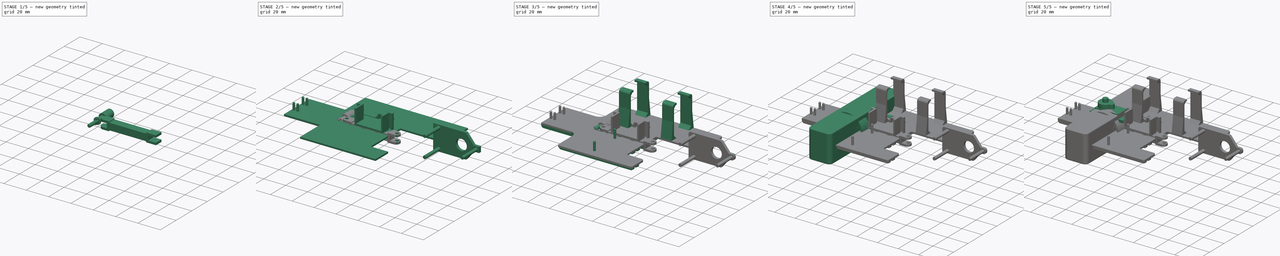
[diagram: build sequence overview — one tinted view per stage of 5, left to right]
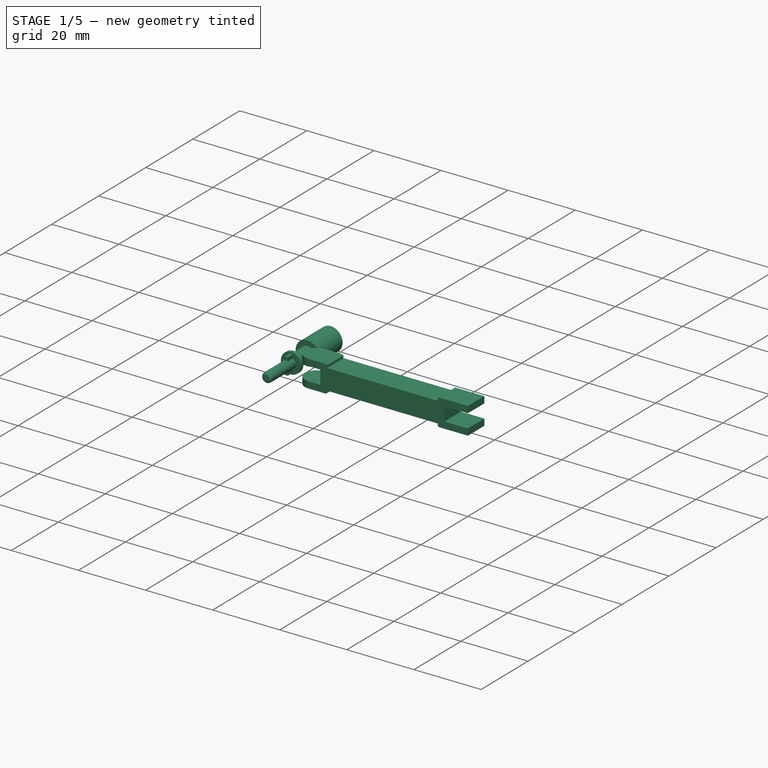
[diagram: stage 1 of 5 — iso view after this stage's code; geometry added in this stage tinted green]
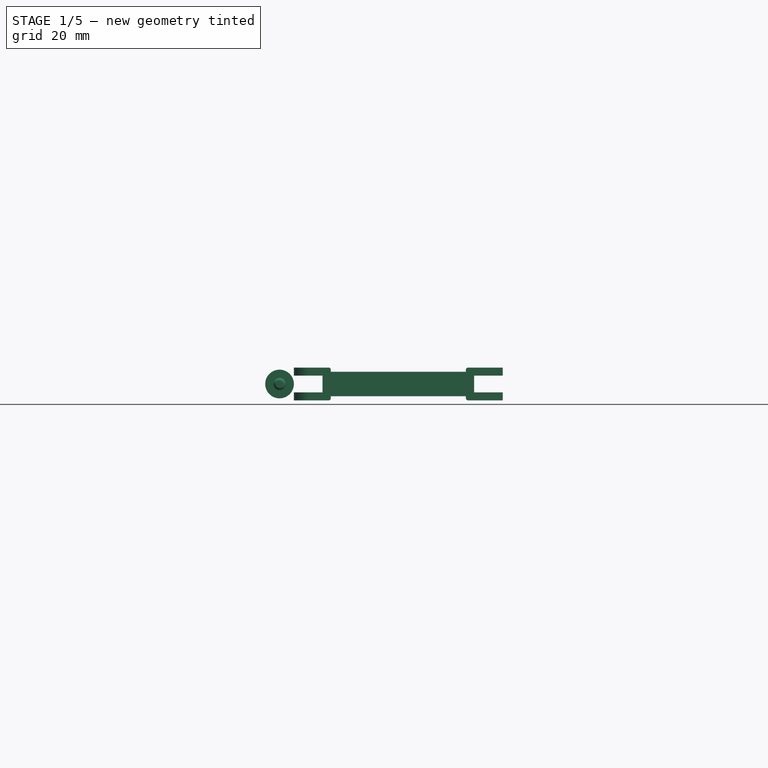
[diagram: stage 1 of 5 — front view after this stage's code; geometry added in this stage tinted green]
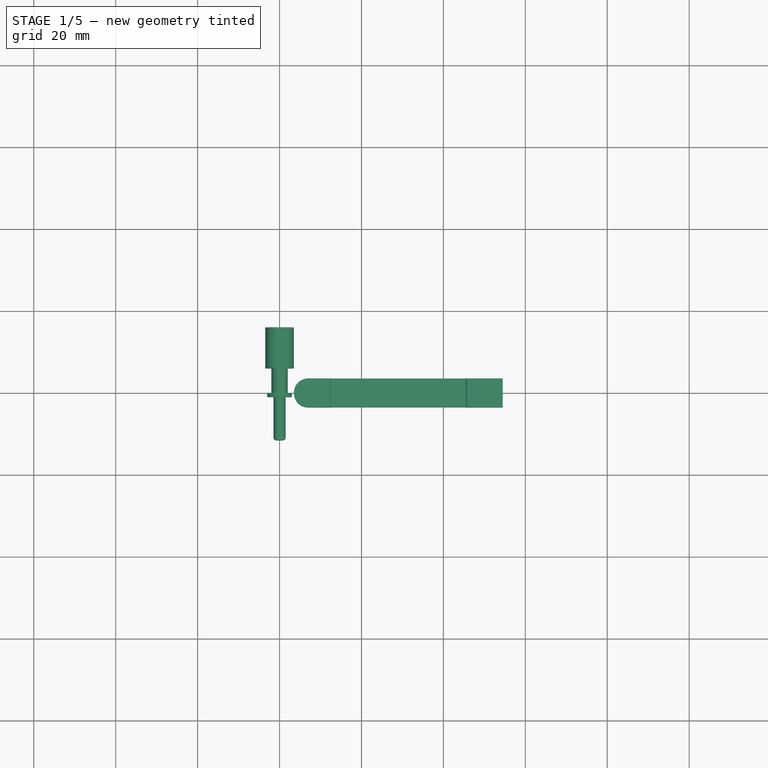
[diagram: stage 1 of 5 — top view after this stage's code; geometry added in this stage tinted green]
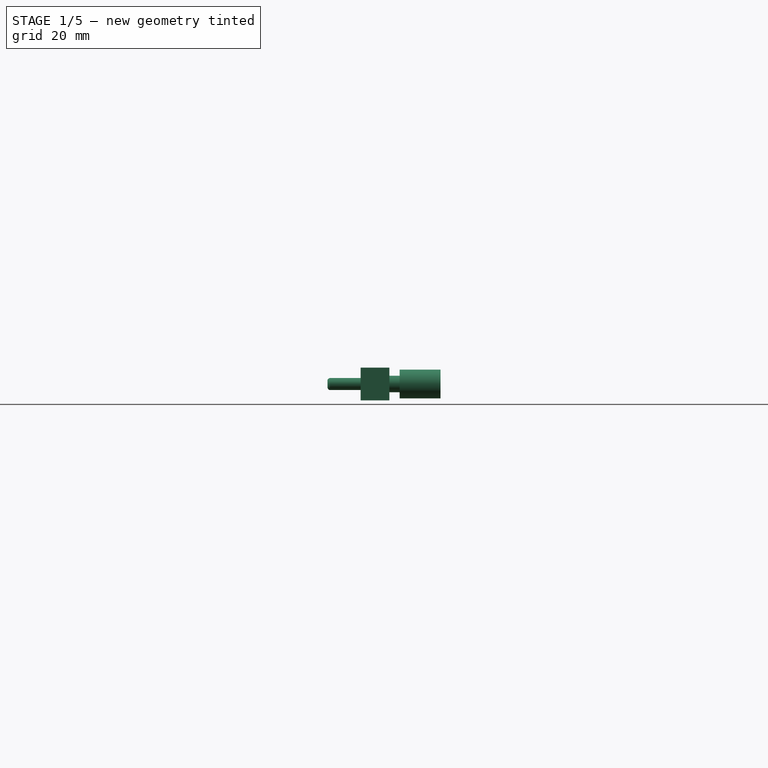
[diagram: stage 1 of 5 — right view after this stage's code; geometry added in this stage tinted green]
FCSTD DOCUMENT  (FreeCAD 0.21R33668 +26 (Git))
Label: rc-car-frame
License: All rights reserved
LicenseURL: http://en.wikipedia.org/wiki/All_rights_reserved
objects: Sketcher::SketchObject×78, PartDesign::Pad×59, PartDesign::Fillet×39, PartDesign::Pocket×17, PartDesign::Body×14, PartDesign::Thickness×2, PartDesign::Revolution×2, PartDesign::Chamfer×2
note: 334 computed .brp shape members not serialized (recipe doc carries the construction recipe); baked Part::Feature solids carry a one-line shape summary decoded from their .brp

FEATURE [Sketcher::SketchObject] Sketch013
  FullyConstrained = true
  MapMode = 5
  Placement = pos=(0,0,0) rot=(1,0,0;1.5708rad)
  Support = -> [XZ_Plane003]
  sketch-geometry (20):
    g0: LineSegment StartX=3.5 StartY=4 StartZ=0 EndX=3.5 EndY=2.05 EndZ=0
    g1: LineSegment StartX=3.5 StartY=2.05 StartZ=0 EndX=10.5 EndY=2.05 EndZ=0
    g2: LineSegment StartX=10.5 StartY=2.05 StartZ=0 EndX=10.5 EndY=-2.05 EndZ=0
    g3: LineSegment StartX=10.5 StartY=-2.05 StartZ=0 EndX=3.5 EndY=-2.05 EndZ=0
    g4: LineSegment StartX=3.5 StartY=-2.05 StartZ=0 EndX=3.5 EndY=-4 EndZ=0
    g5: LineSegment StartX=3.5 StartY=-4 StartZ=0 EndX=12.5 EndY=-4 EndZ=0
    g6: LineSegment StartX=12.5 StartY=-4 StartZ=0 EndX=12.5 EndY=-3 EndZ=0
    g7: LineSegment StartX=12.5 StartY=-3 StartZ=0 EndX=45.5 EndY=-3 EndZ=0
    g8: LineSegment StartX=45.5 StartY=-3 StartZ=0 EndX=45.5 EndY=-4 EndZ=0
    g9: LineSegment StartX=45.5 StartY=-4 StartZ=0 EndX=54.5 EndY=-4 EndZ=0
    g10: LineSegment StartX=54.5 StartY=-4 StartZ=0 EndX=54.5 EndY=-2.05 EndZ=0
    g11: LineSegment StartX=54.5 StartY=-2.05 StartZ=0 EndX=47.5 EndY=-2.05 EndZ=0
    g12: LineSegment StartX=47.5 StartY=-2.05 StartZ=0 EndX=47.5 EndY=2.05 EndZ=0
    g13: LineSegment StartX=47.5 StartY=2.05 StartZ=0 EndX=54.5 EndY=2.05 EndZ=0
    g14: LineSegment StartX=54.5 StartY=2.05 StartZ=0 EndX=54.5 EndY=4 EndZ=0
    g15: LineSegment StartX=54.5 StartY=4 StartZ=0 EndX=45.5 EndY=4 EndZ=0
    g16: LineSegment StartX=45.5 StartY=4 StartZ=0 EndX=45.5 EndY=3 EndZ=0
    g17: LineSegment StartX=45.5 StartY=3 StartZ=0 EndX=12.5 EndY=3 EndZ=0
    g18: LineSegment StartX=12.5 StartY=3 StartZ=0 EndX=12.5 EndY=4 EndZ=0
    g19: LineSegment StartX=12.5 StartY=4 StartZ=0 EndX=3.5 EndY=4 EndZ=0
  constraints (57):
    c: Vertical(g0)
    c: Coincident(g0,g1)
    c: Horizontal(g1)
    c: Coincident(g1,g2)
    c: Vertical(g2)
    c: Coincident(g2,g3)
    c: Horizontal(g3)
    c: Coincident(g3,g4)
    c: Vertical(g4)
    c: Coincident(g4,g5)
    c: Horizontal(g5)
    c: Coincident(g5,g6)
    c: Vertical(g6)
    c: Coincident(g6,g7)
    c: Horizontal(g7)
    c: Coincident(g7,g8)
    c: Vertical(g8)
    c: Coincident(g8,g9)
    c: Horizontal(g9)
    c: Coincident(g9,g10)
    c: Vertical(g10)
    c: Coincident(g10,g11)
    c: Horizontal(g11)
    c: Coincident(g11,g12)
    c: Vertical(g12)
    c: Coincident(g12,g13)
    c: Horizontal(g13)
    c: Coincident(g13,g14)
    c: Vertical(g14)
    c: Coincident(g14,g15)
    c: Horizontal(g15)
    c: Coincident(g15,g16)
    c: Vertical(g16)
    c: Coincident(g16,g17)
    c: Horizontal(g17)
    c: Coincident(g17,g18)
    c: Vertical(g18)
    c: Coincident(g18,g19)
    c: Coincident(g19,g0)
    c: Horizontal(g19)
    c: DistanceX(g0,g14) = 51
    c: DistanceX(g-1,g0) = 3.5
    c: Equal(g0,g4)
    c: Equal(g4,g14)
    c: Equal(g14,g10)
    c: DistanceY(g14,g14) = 1.95
    c: DistanceY(g4,g0) = 8
    c: Symmetric(g0,g4,g-1)
    c: Symmetric(g7,g16,g-1)
    c: Equal(g17,g7)
    c: Equal(g19,g15)
    c: Equal(g11,g1)
    c: Equal(g2,g12)
    c: Symmetric(g14,g9,g-1)
    c: DistanceX(g1,g1) = 7
    c: DistanceX(g19,g19) = 9
    c: DistanceY(g7,g16) = 6
FEATURE [PartDesign::Pad] Pad007
  Direction = (0,-1,-2e-16)
  Length = 7
  Length2 = 10
  Midplane = true
  Placement = pos=(0,0,0) rot=(1,0,0;1.5708rad)
  Profile = -> Sketch013
  ReferenceAxis = -> Sketch013 [N_Axis]
  Type = 0
FEATURE [PartDesign::Fillet] Fillet001
  Base = -> Pad007 [Edge47]
  BaseFeature = -> Pad007
  Placement = pos=(0,0,0) rot=(1,0,0;1.5708rad)
  Radius = 0.5
  SupportTransform = false
  UseAllEdges = false
FEATURE [PartDesign::Fillet] Fillet002
  Base = -> Fillet001 [Edge56]
  BaseFeature = -> Fillet001
  Placement = pos=(0,0,0) rot=(1,0,0;1.5708rad)
  Radius = 0.5
  SupportTransform = false
  UseAllEdges = false
FEATURE [PartDesign::Fillet] Fillet003
  Base = -> Fillet002 [Edge64]
  BaseFeature = -> Fillet002
  Placement = pos=(0,0,0) rot=(1,0,0;1.5708rad)
  Radius = 0.5
  SupportTransform = false
  UseAllEdges = false
FEATURE [PartDesign::Fillet] Fillet004
  Base = -> Fillet003 [Edge55]
  BaseFeature = -> Fillet003
  Placement = pos=(0,0,0) rot=(1,0,0;1.5708rad)
  Radius = 0.5
  SupportTransform = false
  UseAllEdges = false
FEATURE [PartDesign::Fillet] Fillet005
  Base = -> Fillet004 [Edge47]
  BaseFeature = -> Fillet004
  Placement = pos=(0,0,0) rot=(1,0,0;1.5708rad)
  Radius = 3.5
  SupportTransform = false
  UseAllEdges = false
FEATURE [PartDesign::Fillet] Fillet006
  Base = -> Fillet005 [Edge8]
  BaseFeature = -> Fillet005
  Placement = pos=(0,0,0) rot=(1,0,0;1.5708rad)
  Radius = 3.49
  SupportTransform = false
  UseAllEdges = false
FEATURE [PartDesign::Fillet] Fillet007
  Base = -> Fillet006 [Edge40]
  BaseFeature = -> Fillet006
  Placement = pos=(0,0,0) rot=(1,0,0;1.5708rad)
  Radius = 3.5
  SupportTransform = false
  UseAllEdges = false
FEATURE [PartDesign::Fillet] Fillet008
  Base = -> Fillet007 [Edge79]
  BaseFeature = -> Fillet007
  Placement = pos=(0,0,0) rot=(1,0,0;1.5708rad)
  Radius = 3.49
  SupportTransform = false
  UseAllEdges = false
FEATURE [Sketcher::SketchObject] Sketch049
  FullyConstrained = true
  MapMode = 5
  Placement = pos=(0,0,0) rot=(1,0,0;1.5708rad)
  Support = -> [XZ_Plane009,XY_Plane009]
  sketch-geometry (1):
    g0: Circle CenterX=0 CenterY=0 CenterZ=0 NormalX=0 NormalY=0 NormalZ=1 AngleXU=0 Radius=2.5
  constraints (2):
    c: Coincident(g0,g-1)
    c: Radius(g0) = 2.5
FEATURE [PartDesign::Pad] Pad028
  Direction = (0,-1,2e-16)
  Length = 0.6
  Length2 = 10
  Placement = pos=(0,0,0) rot=(1,0,0;1.5708rad)
  Profile = -> Sketch049
  ReferenceAxis = -> Sketch049 [N_Axis]
  Type = 0
FEATURE [Sketcher::SketchObject] Sketch050
  FullyConstrained = true
  MapMode = 5
  Placement = pos=(0,-0.6,3e-16) rot=(1,0,0;1.5708rad)
  Support = -> [Pad028]
  sketch-geometry (1):
    g0: Circle CenterX=0 CenterY=0 CenterZ=0 NormalX=0 NormalY=0 NormalZ=1 AngleXU=0 Radius=1.47
  constraints (2):
    c: Coincident(g0,g-1)
    c: Radius(g0) = 1.47
FEATURE [PartDesign::Pad] Pad029
  BaseFeature = -> Pad028
  Direction = (0,-1,4e-16)
  Length = 11
  Length2 = 10
  Placement = pos=(0,0,0) rot=(1,0,0;1.5708rad)
  Profile = -> Sketch050
  ReferenceAxis = -> Sketch050 [N_Axis]
  Type = 0
FEATURE [PartDesign::Body] Body013  label="motor-ref"
  Group = -> [Sketch057,Pad034,Sketch058,Pad035,Fillet023,Fillet024,Sketch059,Pad036,Sketch060,Pad037,Sketch061,Pad038,Sketch062,Pad039,Sketch063,Pocket023,Sketch064,Pad040,Sketch065,Pad041,Fillet025,Fillet026,Fillet027,Fillet028]
  Origin = -> Origin013
  Placement = pos=(29.6,-114.5,-2.7e-14) rot=(1,0,0;3.14159rad)
  Tip = -> Fillet028
FEATURE [Sketcher::SketchObject] Sketch066
  FullyConstrained = true
  MapMode = 5
  Placement = pos=(0,0,0) rot=(1,0,0;1.5708rad)
  Support = -> [XZ_Plane014]
  sketch-geometry (1):
    g0: Circle CenterX=0 CenterY=0 CenterZ=0 NormalX=0 NormalY=0 NormalZ=1 AngleXU=0 Radius=3
  constraints (2):
    c: Coincident(g0,g-1)
    c: Radius(g0) = 3
FEATURE [PartDesign::Pad] Pad042
  Direction = (0,-1,-2e-16)
  Length = 1
  Length2 = 10
  Placement = pos=(0,0,0) rot=(1,0,0;1.5708rad)
  Profile = -> Sketch066
  ReferenceAxis = -> Sketch066 [N_Axis]
  Type = 0
FEATURE [Sketcher::SketchObject] Sketch067
  FullyConstrained = true
  MapMode = 5
  Placement = pos=(0,0,0) rot=(-1,0,0;1.5708rad)
  Support = -> [Pad042]
  sketch-geometry (1):
    g0: Circle CenterX=0 CenterY=0 CenterZ=0 NormalX=0 NormalY=0 NormalZ=1 AngleXU=0 Radius=1
  constraints (2):
    c: Coincident(g0,g-1)
    c: Radius(g0) = 1
FEATURE [PartDesign::Pad] Pad043
  BaseFeature = -> Pad042
  Direction = (0,1,2e-16)
  Length = 2.5
  Length2 = 10
  Placement = pos=(0,0,0) rot=(1,0,0;1.5708rad)
  Profile = -> Sketch067
  ReferenceAxis = -> Sketch067 [N_Axis]
  Type = 0
FEATURE [Sketcher::SketchObject] Sketch068
  FullyConstrained = true
  MapMode = 5
  Support = -> [XY_Plane014]
  sketch-geometry (4):
    g0: LineSegment StartX=0 StartY=-1 StartZ=0 EndX=0 EndY=-6 EndZ=0
    g1: LineSegment StartX=0 StartY=-6 StartZ=0 EndX=-1 EndY=-6 EndZ=0
    g2: LineSegment StartX=-1 StartY=-6 StartZ=0 EndX=-1.15 EndY=-1 EndZ=0
    g3: LineSegment StartX=-1.15 StartY=-1 StartZ=0 EndX=0 EndY=-1 EndZ=0
  constraints (12):
    c: PointOnObject(g0,g-2)
    c: PointOnObject(g0,g-2)
    c: Coincident(g0,g1)
    c: Coincident(g1,g2)
    c: Coincident(g2,g3)
    c: Coincident(g3,g0)
    c: Horizontal(g3)
    c: DistanceY(g0,g0) = 5
    c: DistanceY(g0,g-1) = 1
    c: DistanceX(g3,g3) = 1.15
    c: Horizontal(g1)
    c: DistanceX(g1,g1) = 1
FEATURE [PartDesign::Revolution] Revolution
  Angle = 360
  Axis = (0,1,0)
  Base = (0,0,0)
  BaseFeature = -> Pad043
  Placement = pos=(0,0,0) rot=(1,0,0;1.5708rad)
  Profile = -> Sketch068
  ReferenceAxis = -> Sketch068 [V_Axis]
FEATURE [Sketcher::SketchObject] Sketch069
  FullyConstrained = true
  MapMode = 5
  Placement = pos=(0,0,0) rot=(1,0,0;1.5708rad)
  Support = -> [XZ_Plane015]
  sketch-geometry (1):
    g0: Circle CenterX=0 CenterY=0 CenterZ=0 NormalX=0 NormalY=0 NormalZ=1 AngleXU=0 Radius=3
  constraints (2):
    c: Coincident(g0,g-1)
    c: Radius(g0) = 3
FEATURE [PartDesign::Pad] Pad044
  Direction = (0,-1,-2e-16)
  Length = 1
  Length2 = 10
  Placement = pos=(0,0,0) rot=(1,0,0;1.5708rad)
  Profile = -> Sketch069
  ReferenceAxis = -> Sketch069 [N_Axis]
  Type = 0
FEATURE [Sketcher::SketchObject] Sketch070
  FullyConstrained = true
  MapMode = 5
  Support = -> [XY_Plane015]
  sketch-geometry (4):
    g0: LineSegment StartX=0 StartY=-1 StartZ=0 EndX=0 EndY=-6 EndZ=0
    g1: LineSegment StartX=0 StartY=-6 StartZ=0 EndX=-1 EndY=-6 EndZ=0
    g2: LineSegment StartX=-1 StartY=-6 StartZ=0 EndX=-1.15 EndY=-1 EndZ=0
    g3: LineSegment StartX=-1.15 StartY=-1 StartZ=0 EndX=0 EndY=-1 EndZ=0
  constraints (12):
    c: PointOnObject(g0,g-2)
    c: PointOnObject(g0,g-2)
    c: Coincident(g0,g1)
    c: Horizontal(g1)
    c: Coincident(g1,g2)
    c: Coincident(g2,g3)
    c: Coincident(g3,g0)
    c: Horizontal(g3)
    c: DistanceY(g0,g0) = 5
    c: DistanceY(g0,g-1) = 1
    c: DistanceX(g3,g3) = 1.15
    c: DistanceX(g1,g1) = 1
FEATURE [PartDesign::Revolution] Revolution001
  Angle = 360
  Axis = (0,1,0)
  Base = (0,0,0)
  BaseFeature = -> Pad044
  Placement = pos=(0,0,0) rot=(1,0,0;1.5708rad)
  Profile = -> Sketch070
  ReferenceAxis = -> Sketch070 [V_Axis]
FEATURE [Sketcher::SketchObject] Sketch071
  FullyConstrained = true
  MapMode = 5
  Placement = pos=(0,0,0) rot=(-1,0,0;1.5708rad)
  Support = -> [Revolution001]
  sketch-geometry (1):
    g0: Circle CenterX=0 CenterY=0 CenterZ=0 NormalX=0 NormalY=0 NormalZ=1 AngleXU=0 Radius=2
  constraints (2):
    c: Coincident(g0,g-1)
    c: Radius(g0) = 2
FEATURE [PartDesign::Pad] Pad045
  BaseFeature = -> Revolution001
  Direction = (0,1,2e-16)
  Length = 6
  Length2 = 10
  Placement = pos=(0,0,0) rot=(1,0,0;1.5708rad)
  Profile = -> Sketch071
  ReferenceAxis = -> Sketch071 [N_Axis]
  Type = 0
FEATURE [Sketcher::SketchObject] Sketch072
  FullyConstrained = true
  MapMode = 5
  Placement = pos=(0,6,0) rot=(-1,0,0;1.5708rad)
  Support = -> [Pad045]
  sketch-geometry (1):
    g0: Circle CenterX=0 CenterY=0 CenterZ=0 NormalX=0 NormalY=0 NormalZ=1 AngleXU=0 Radius=3.5
  constraints (2):
    c: Coincident(g0,g-1)
    c: Radius(g0) = 3.5
FEATURE [PartDesign::Pad] Pad046
  BaseFeature = -> Pad045
  Direction = (0,1,2e-16)
  Length = 10
  Length2 = 10
  Placement = pos=(0,0,0) rot=(1,0,0;1.5708rad)
  Profile = -> Sketch072
  ReferenceAxis = -> Sketch072 [N_Axis]
  Type = 0
FEATURE [Sketcher::SketchObject] Sketch073
  FullyConstrained = true
  MapMode = 5
  Placement = pos=(0,16,1.1e-15) rot=(-1,0,0;1.5708rad)
  Support = -> [Pad046]
  sketch-geometry (4):
    g0: ArcOfCircle CenterX=0 CenterY=0 CenterZ=0 NormalX=0 NormalY=0 NormalZ=1 AngleXU=0 Radius=2.75 StartAngle=3.94964 EndAngle=5.47513
    g1: LineSegment StartX=-1.9 StartY=1.98809 StartZ=0 EndX=-1.9 EndY=-1.98809 EndZ=0
    g2: LineSegment StartX=1.9 StartY=1.98809 StartZ=0 EndX=1.9 EndY=-1.98809 EndZ=0
    g3: ArcOfCircle CenterX=0 CenterY=0 CenterZ=0 NormalX=0 NormalY=0 NormalZ=1 AngleXU=0 Radius=2.75 StartAngle=0.808051 EndAngle=2.33354
  constraints (12):
    c: Coincident(g0,g-1)
    c: Radius(g0) = 2.75
    c: Vertical(g1)
    c: Vertical(g2)
    c: Equal(g1,g2)
    c: DistanceX(g1,g2) = 3.8
    c: Coincident(g3,g1)
    c: Coincident(g0,g1)
    c: Equal(g0,g3)
    c: Coincident(g0,g2)
    c: Coincident(g3,g2)
    c: Coincident(g0,g3)
FEATURE [PartDesign::Pocket] Pocket024
  BaseFeature = -> Pad046
  Direction = (0,-1,-2e-16)
  Length = 8
  Length2 = 5
  Placement = pos=(0,0,0) rot=(1,0,0;1.5708rad)
  Profile = -> Sketch073
  ReferenceAxis = -> Sketch073 [N_Axis]
  Type = 0
FEATURE [PartDesign::Body] Body003  label="axle-servo-motor-holder"
  Group = -> [Sketch013,Pad007,Fillet001,Fillet002,Fillet003,Fillet004,Fillet005,Fillet006,Fillet007,Fillet008,Fillet009,Fillet010,Fillet011,Fillet012,Sketch014,Pocket006,Sketch022,Pocket008,Sketch023,Pocket009,Sketch025,Pocket010,Sketch104,Pad073,Sketch105,Pad074,Sketch106,Pad075,Fillet045]
  Origin = -> Origin003
  Tip = -> Fillet045
FEATURE [PartDesign::Fillet] Fillet046
  Base = -> Revolution [Edge8,Edge7]
  BaseFeature = -> Revolution
  Placement = pos=(0,0,0) rot=(1,0,0;1.5708rad)
  Radius = 0.5
  SupportTransform = false
  UseAllEdges = false
FEATURE [Sketcher::SketchObject] Sketch107
  FullyConstrained = true
  MapMode = 5
  Placement = pos=(0,-1,0) rot=(1,0,0;1.5708rad)
  Support = -> [Fillet046]
  sketch-geometry (4):
    g0: ArcOfCircle CenterX=0 CenterY=0 CenterZ=0 NormalX=0 NormalY=0 NormalZ=1 AngleXU=0 Radius=2.5 StartAngle=4.51103 EndAngle=4.91375
    g1: LineSegment StartX=-0.5 StartY=2.44949 StartZ=0 EndX=-0.5 EndY=-2.44949 EndZ=0
    g2: LineSegment StartX=0.5 StartY=-2.44949 StartZ=0 EndX=0.5 EndY=2.44949 EndZ=0
    g3: ArcOfCircle CenterX=0 CenterY=0 CenterZ=0 NormalX=0 NormalY=0 NormalZ=1 AngleXU=0 Radius=2.5 StartAngle=1.36944 EndAngle=1.77215
  constraints (12):
    c: Coincident(g0,g-1)
    c: Radius(g0) = 2.5
    c: Vertical(g1)
    c: Vertical(g2)
    c: Equal(g2,g1)
    c: DistanceX(g1,g2) = 1
    c: Coincident(g3,g1)
    c: Coincident(g0,g1)
    c: Equal(g0,g3)
    c: Coincident(g0,g2)
    c: Coincident(g3,g2)
    c: Coincident(g0,g3)
FEATURE [PartDesign::Pad] Pad076
  BaseFeature = -> Fillet046
  Direction = (0,-1,-2e-16)
  Length = 2
  Length2 = 10
  Placement = pos=(0,0,0) rot=(1,0,0;1.5708rad)
  Profile = -> Sketch107
  ReferenceAxis = -> Sketch107 [N_Axis]
  Type = 0
FEATURE [PartDesign::Body] Body014  label="front-wheel-connector"
  Group = -> [Sketch066,Pad042,Sketch067,Pad043,Sketch068,Revolution,Fillet046,Sketch107,Pad076]
  Origin = -> Origin014
  Placement = pos=(-0.6,0,0) rot=(0,0,-1;1.5708rad)
  Tip = -> Pad076
FEATURE [Sketcher::SketchObject] Sketch108
  FullyConstrained = true
  MapMode = 5
  Placement = pos=(0,-1,0) rot=(1,0,0;1.5708rad)
  Support = -> [Pocket024]
  sketch-geometry (4):
    g0: ArcOfCircle CenterX=0 CenterY=0 CenterZ=0 NormalX=0 NormalY=0 NormalZ=1 AngleXU=0 Radius=2.5 StartAngle=4.51103 EndAngle=4.91375
    g1: LineSegment StartX=-0.5 StartY=2.44949 StartZ=0 EndX=-0.5 EndY=-2.44949 EndZ=0
    g2: LineSegment StartX=0.5 StartY=-2.44949 StartZ=0 EndX=0.5 EndY=2.44949 EndZ=0
    g3: ArcOfCircle CenterX=0 CenterY=0 CenterZ=0 NormalX=0 NormalY=0 NormalZ=1 AngleXU=0 Radius=2.5 StartAngle=1.36944 EndAngle=1.77215
  constraints (12):
    c: Coincident(g0,g-1)
    c: Radius(g0) = 2.5
    c: Vertical(g1)
    c: Vertical(g2)
    c: Equal(g2,g1)
    c: DistanceX(g1,g2) = 1
    c: Coincident(g3,g1)
    c: Coincident(g0,g1)
    c: Equal(g0,g3)
    c: Coincident(g0,g2)
    c: Coincident(g3,g2)
    c: Coincident(g0,g3)
FEATURE [PartDesign::Pad] Pad077
  BaseFeature = -> Pocket024
  Direction = (0,-1,-2e-16)
  Length = 2
  Length2 = 10
  Placement = pos=(0,0,0) rot=(1,0,0;1.5708rad)
  Profile = -> Sketch108
  ReferenceAxis = -> Sketch108 [N_Axis]
  Type = 0
FEATURE [PartDesign::Fillet] Fillet047
  Base = -> Pad077 [Edge38]
  BaseFeature = -> Pad077
  Placement = pos=(0,0,0) rot=(1,0,0;1.5708rad)
  Radius = 0.5
  SupportTransform = false
  UseAllEdges = false
FEATURE [PartDesign::Body] Body015  label="back-wheel-connector"
  Group = -> [Sketch069,Pad044,Sketch070,Revolution001,Sketch071,Pad045,Sketch072,Pad046,Sketch073,Pocket024,Sketch108,Pad077,Fillet047]
  Origin = -> Origin015
  Placement = pos=(55.95,-140.3,-3.6e-14) rot=(0,0,1;1.5708rad)
  Tip = -> Fillet047
FEATURE [PartDesign::Fillet] Fillet048
  Base = -> Pad029 [Edge6]
  BaseFeature = -> Pad029
  Placement = pos=(0,0,0) rot=(1,0,0;1.5708rad)
  Radius = 0.7
  SupportTransform = false
  UseAllEdges = false
FEATURE [PartDesign::Body] Body009  label="pin1"
  Group = -> [Sketch049,Pad028,Sketch050,Pad029,Fillet048]
  Origin = -> Origin009
  Placement = pos=(6,-3e-15,-4.6) rot=(-1,0,0;1.5708rad)
  Tip = -> Fillet048
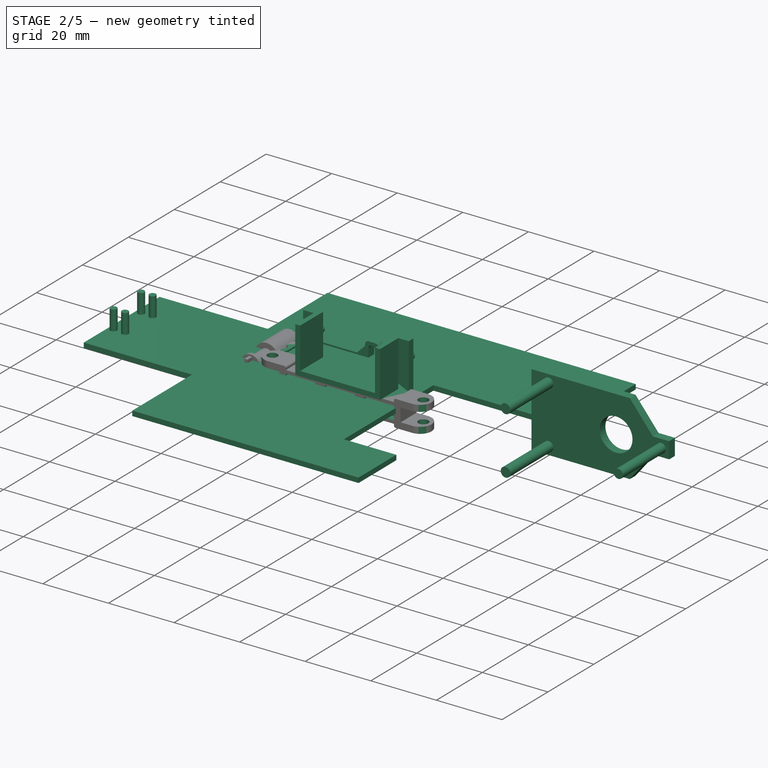
[diagram: stage 2 of 5 — iso view after this stage's code; geometry added in this stage tinted green]
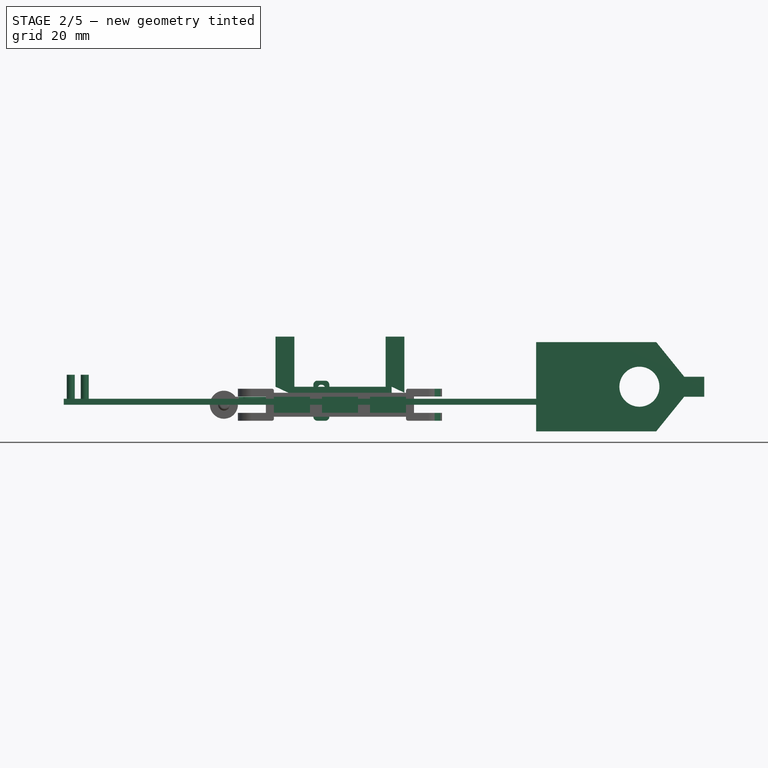
[diagram: stage 2 of 5 — front view after this stage's code; geometry added in this stage tinted green]
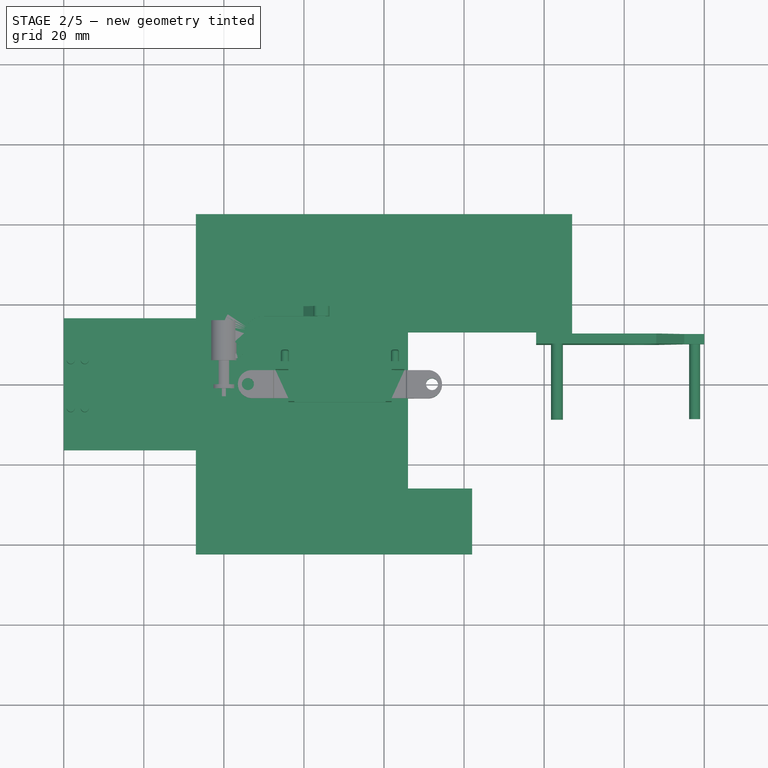
[diagram: stage 2 of 5 — top view after this stage's code; geometry added in this stage tinted green]
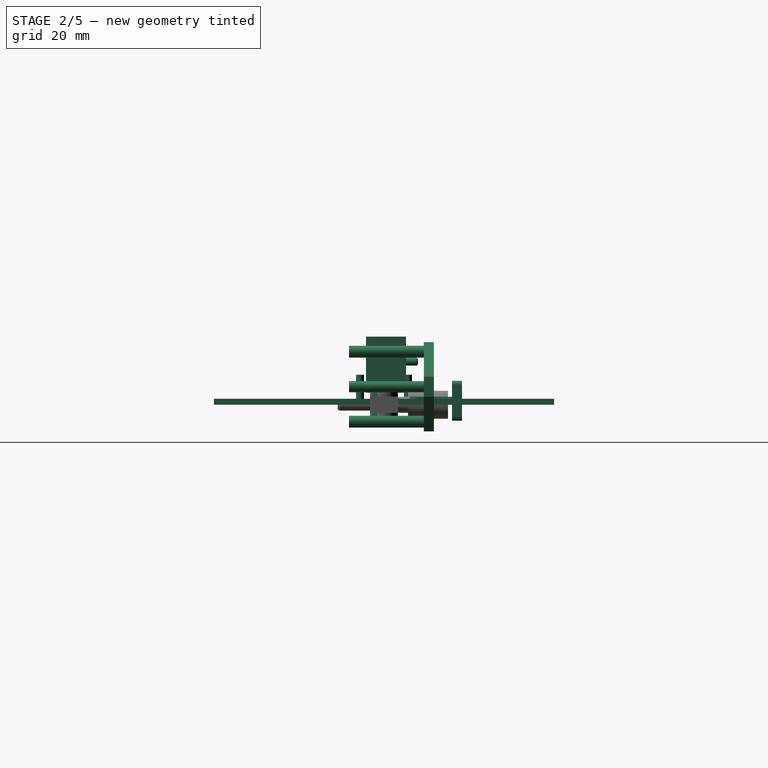
[diagram: stage 2 of 5 — right view after this stage's code; geometry added in this stage tinted green]
FEATURE [PartDesign::Fillet] Fillet009
  Base = -> Fillet008 [Edge34]
  BaseFeature = -> Fillet008
  Placement = pos=(0,0,0) rot=(1,0,0;1.5708rad)
  Radius = 3.5
  SupportTransform = false
  UseAllEdges = false
FEATURE [PartDesign::Fillet] Fillet010
  Base = -> Fillet009 [Edge10]
  BaseFeature = -> Fillet009
  Placement = pos=(0,0,0) rot=(1,0,0;1.5708rad)
  Radius = 3.5
  SupportTransform = false
  UseAllEdges = false
FEATURE [PartDesign::Fillet] Fillet011
  Base = -> Fillet010 [Edge88]
  BaseFeature = -> Fillet010
  Placement = pos=(0,0,0) rot=(1,0,0;1.5708rad)
  Radius = 3.49
  SupportTransform = false
  UseAllEdges = false
FEATURE [PartDesign::Fillet] Fillet012
  Base = -> Fillet011 [Edge21]
  BaseFeature = -> Fillet011
  Placement = pos=(0,0,0) rot=(1,0,0;1.5708rad)
  Radius = 3.49
  SupportTransform = false
  UseAllEdges = false
FEATURE [Sketcher::SketchObject] Sketch014
  FullyConstrained = true
  MapMode = 5
  Placement = pos=(0,9e-16,4) rot=(0,0,1;3.14159rad)
  Support = -> [Fillet012]
  sketch-geometry (2):
    g0: Circle CenterX=-6 CenterY=0 CenterZ=0 NormalX=0 NormalY=0 NormalZ=1 AngleXU=0 Radius=1.5
    g1: Circle CenterX=-52 CenterY=0 CenterZ=0 NormalX=0 NormalY=0 NormalZ=1 AngleXU=0 Radius=1.5
  constraints (6):
    c: PointOnObject(g0,g-1)
    c: PointOnObject(g1,g-1)
    c: Radius(g1) = 1.5
    c: Equal(g1,g0)
    c: DistanceX(g0,g-1) = 6
    c: DistanceX(g1,g-1) = 52
FEATURE [PartDesign::Pocket] Pocket006
  BaseFeature = -> Fillet012
  Direction = (0,2e-16,-1)
  Length = 5
  Length2 = 5
  Placement = pos=(0,0,0) rot=(1,0,0;1.5708rad)
  Profile = -> Sketch014
  ReferenceAxis = -> Sketch014 [N_Axis]
  Type = 1
FEATURE [PartDesign::Body] Body004  label="servo-motor-ref"
  Group = -> [Sketch015,Pad008,Sketch016,Pad009,Sketch017,Pad010,Sketch018,Pocket007,Sketch019,Pad011,Sketch020,Pad012,Sketch021,Pad013]
  Origin = -> Origin004
  Placement = pos=(29,-2.84978,10.7497) rot=(-1,0,0;1.57076rad)
  Tip = -> Pad013
FEATURE [Sketcher::SketchObject] Sketch022
  FullyConstrained = true
  MapMode = 5
  Placement = pos=(0,-3.5,0) rot=(1,0,0;1.5708rad)
  Support = -> [Pocket006]
  sketch-geometry (12):
    g0: LineSegment StartX=12.5 StartY=2 StartZ=0 EndX=21.5 EndY=2 EndZ=0
    g1: LineSegment StartX=21.5 StartY=2 StartZ=0 EndX=21.5 EndY=-2 EndZ=0
    g2: LineSegment StartX=21.5 StartY=-2 StartZ=0 EndX=12.5 EndY=-2 EndZ=0
    g3: LineSegment StartX=12.5 StartY=-2 StartZ=0 EndX=12.5 EndY=2 EndZ=0
    g4: LineSegment StartX=24.5 StartY=2 StartZ=0 EndX=33.5 EndY=2 EndZ=0
    g5: LineSegment StartX=33.5 StartY=2 StartZ=0 EndX=33.5 EndY=-2 EndZ=0
    g6: LineSegment StartX=33.5 StartY=-2 StartZ=0 EndX=24.5 EndY=-2 EndZ=0
    g7: LineSegment StartX=24.5 StartY=-2 StartZ=0 EndX=24.5 EndY=2 EndZ=0
    g8: LineSegment StartX=36.5 StartY=2 StartZ=0 EndX=45.5 EndY=2 EndZ=0
    g9: LineSegment StartX=45.5 StartY=2 StartZ=0 EndX=45.5 EndY=-2 EndZ=0
    g10: LineSegment StartX=45.5 StartY=-2 StartZ=0 EndX=36.5 EndY=-2 EndZ=0
    g11: LineSegment StartX=36.5 StartY=-2 StartZ=0 EndX=36.5 EndY=2 EndZ=0
  constraints (33):
    c: Coincident(g0,g1)
    c: Coincident(g1,g2)
    c: Coincident(g2,g3)
    c: Coincident(g3,g0)
    c: Horizontal(g0)
    c: Horizontal(g2)
    c: Vertical(g3)
    c: Coincident(g4,g5)
    c: Coincident(g5,g6)
    c: Coincident(g6,g7)
    c: Coincident(g7,g4)
    c: Horizontal(g4)
    c: Horizontal(g6)
    c: Vertical(g7)
    c: Coincident(g8,g9)
    c: Coincident(g9,g10)
    c: Coincident(g10,g11)
    c: Coincident(g11,g8)
    c: Horizontal(g8)
    c: Horizontal(g10)
    c: Equal(g0,g4)
    c: Equal(g4,g8)
    c: DistanceX(g0,g0) = 9
    c: Equal(g3,g7)
    c: DistanceY(g3,g3) = 4
    c: Symmetric(g8,g9,g-1)
    c: Symmetric(g4,g5,g-1)
    c: Vertical(g11)
    c: Equal(g11,g7)
    c: Symmetric(g0,g1,g-1)
    c: DistanceX(g-1,g0) = 12.5
    c: DistanceX(g0,g4) = 3
    c: DistanceX(g4,g8) = 3
FEATURE [PartDesign::Pocket] Pocket008
  BaseFeature = -> Pocket006
  Direction = (0,1,2e-16)
  Length = 2
  Length2 = 5
  Placement = pos=(0,0,0) rot=(1,0,0;1.5708rad)
  Profile = -> Sketch022
  ReferenceAxis = -> Sketch022 [N_Axis]
  Type = 0
FEATURE [Sketcher::SketchObject] Sketch023
  FullyConstrained = true
  MapMode = 5
  Placement = pos=(0,3.5,0) rot=(-1,0,0;1.5708rad)
  Support = -> [Pocket008]
  sketch-geometry (12):
    g0: LineSegment StartX=12.5 StartY=2 StartZ=0 EndX=21.5 EndY=2 EndZ=0
    g1: LineSegment StartX=21.5 StartY=2 StartZ=0 EndX=21.5 EndY=-2 EndZ=0
    g2: LineSegment StartX=21.5 StartY=-2 StartZ=0 EndX=12.5 EndY=-2 EndZ=0
    g3: LineSegment StartX=12.5 StartY=-2 StartZ=0 EndX=12.5 EndY=2 EndZ=0
    g4: LineSegment StartX=24.5 StartY=2 StartZ=0 EndX=33.5 EndY=2 EndZ=0
    g5: LineSegment StartX=33.5 StartY=2 StartZ=0 EndX=33.5 EndY=-2 EndZ=0
    g6: LineSegment StartX=33.5 StartY=-2 StartZ=0 EndX=24.5 EndY=-2 EndZ=0
    g7: LineSegment StartX=24.5 StartY=-2 StartZ=0 EndX=24.5 EndY=2 EndZ=0
    g8: LineSegment StartX=36.5 StartY=2 StartZ=0 EndX=45.5 EndY=2 EndZ=0
    g9: LineSegment StartX=45.5 StartY=2 StartZ=0 EndX=45.5 EndY=-2 EndZ=0
    g10: LineSegment StartX=45.5 StartY=-2 StartZ=0 EndX=36.5 EndY=-2 EndZ=0
    g11: LineSegment StartX=36.5 StartY=-2 StartZ=0 EndX=36.5 EndY=2 EndZ=0
  constraints (33):
    c: Coincident(g0,g1)
    c: Coincident(g1,g2)
    c: Coincident(g2,g3)
    c: Coincident(g3,g0)
    c: Horizontal(g0)
    c: Horizontal(g2)
    c: Vertical(g3)
    c: Coincident(g4,g5)
    c: Coincident(g5,g6)
    c: Coincident(g6,g7)
    c: Coincident(g7,g4)
    c: Horizontal(g4)
    c: Horizontal(g6)
    c: Coincident(g8,g9)
    c: Coincident(g9,g10)
    c: Coincident(g10,g11)
    c: Coincident(g11,g8)
    c: Horizontal(g8)
    c: Horizontal(g10)
    c: Vertical(g11)
    c: Symmetric(g8,g9,g-1)
    c: Symmetric(g4,g5,g-1)
    c: Symmetric(g0,g1,g-1)
    c: Equal(g3,g7)
    c: Equal(g7,g11)
    c: Equal(g0,g4)
    c: Equal(g4,g8)
    c: DistanceX(g0,g0) = 9
    c: DistanceX(g0,g4) = 3
    c: DistanceX(g4,g8) = 3
    c: Vertical(g7)
    c: DistanceY(g3,g3) = 4
    c: DistanceX(g-1,g0) = 12.5
FEATURE [PartDesign::Pocket] Pocket009
  BaseFeature = -> Pocket008
  Direction = (0,-1,-2e-16)
  Length = 2
  Length2 = 5
  Placement = pos=(0,0,0) rot=(1,0,0;1.5708rad)
  Profile = -> Sketch023
  ReferenceAxis = -> Sketch023 [N_Axis]
  Type = 0
FEATURE [PartDesign::Body] Body005  label="track-rod"
  Group = -> [Sketch024,Pad014]
  Origin = -> Origin005
  Placement = pos=(10,-12,1) rot=(0,0,1;0rad)
  Tip = -> Pad014
FEATURE [Sketcher::SketchObject] Sketch025
  FullyConstrained = true
  MapMode = 5
  Placement = pos=(0,7e-16,3) rot=(0,0,1;3.14159rad)
  Support = -> [Pocket009]
  sketch-geometry (4):
    g0: Circle CenterX=-23 CenterY=1.75 CenterZ=0 NormalX=0 NormalY=0 NormalZ=1 AngleXU=0 Radius=1
    g1: Circle CenterX=-23 CenterY=-1.75 CenterZ=0 NormalX=0 NormalY=0 NormalZ=1 AngleXU=0 Radius=1
    g2: Circle CenterX=-35 CenterY=1.75 CenterZ=0 NormalX=0 NormalY=0 NormalZ=1 AngleXU=0 Radius=1
    g3: Circle CenterX=-35 CenterY=-1.75 CenterZ=0 NormalX=0 NormalY=0 NormalZ=1 AngleXU=0 Radius=1
  constraints (10):
    c: Equal(g2,g3)
    c: Equal(g3,g0)
    c: Equal(g0,g1)
    c: Radius(g0) = 1
    c: Symmetric(g0,g1,g-1)
    c: Symmetric(g2,g3,g-1)
    c: DistanceX(g0,g-1) = 23
    c: DistanceX(g2,g0) = 12
    c: DistanceY(g3,g2) = 3.5
    c: Horizontal(g1,g3)
FEATURE [PartDesign::Pocket] Pocket010
  BaseFeature = -> Pocket009
  Direction = (0,-2e-16,-1)
  Length = 5
  Length2 = 5
  Placement = pos=(0,0,0) rot=(1,0,0;1.5708rad)
  Profile = -> Sketch025
  ReferenceAxis = -> Sketch025 [N_Axis]
  Type = 1
FEATURE [PartDesign::Body] Body016  label="battery-ref"
  Group = -> [Sketch074,Pad047,Fillet029,Fillet030]
  Origin = -> Origin016
  Placement = pos=(56.5,-71,11) rot=(0,0,1;0rad)
  Tip = -> Fillet030
FEATURE [Sketcher::SketchObject] Sketch075
  FullyConstrained = true
  MapMode = 5
  Support = -> [XY_Plane017]
  sketch-geometry (14):
    g0: LineSegment StartX=-40 StartY=16.5 StartZ=0 EndX=-40 EndY=-16.5 EndZ=0
    g1: LineSegment StartX=-40 StartY=-16.5 StartZ=0 EndX=-7 EndY=-16.5 EndZ=0
    g2: LineSegment StartX=-7 StartY=-16.5 StartZ=0 EndX=-7 EndY=-42.5 EndZ=0
    g3: LineSegment StartX=-7 StartY=-42.5 StartZ=0 EndX=62 EndY=-42.5 EndZ=0
    g4: LineSegment StartX=87 StartY=42.5 StartZ=0 EndX=-7 EndY=42.5 EndZ=0
    g5: LineSegment StartX=-7 StartY=42.5 StartZ=0 EndX=-7 EndY=16.5 EndZ=0
    g6: LineSegment StartX=-7 StartY=16.5 StartZ=0 EndX=-40 EndY=16.5 EndZ=0
    g7: LineSegment StartX=87 StartY=42.5 StartZ=0 EndX=87 EndY=9.95 EndZ=0
    g8: LineSegment StartX=87 StartY=9.95 StartZ=0 EndX=78 EndY=9.95 EndZ=0
    g9: LineSegment StartX=78 StartY=9.95 StartZ=0 EndX=78 EndY=12.95 EndZ=0
    g10: LineSegment StartX=78 StartY=12.95 StartZ=0 EndX=46 EndY=12.95 EndZ=0
    g11: LineSegment StartX=46 StartY=12.95 StartZ=0 EndX=46 EndY=-26.05 EndZ=0
    g12: LineSegment StartX=62 StartY=-26.05 StartZ=0 EndX=62 EndY=-42.5 EndZ=0
    g13: LineSegment StartX=46 StartY=-26.05 StartZ=0 EndX=62 EndY=-26.05 EndZ=0
  constraints (40):
    c: Coincident(g0,g1)
    c: Coincident(g1,g2)
    c: Coincident(g2,g3)
    c: Horizontal(g3)
    c: Horizontal(g4)
    c: Coincident(g4,g5)
    c: Coincident(g5,g6)
    c: Coincident(g6,g0)
    c: Symmetric(g0,g0,g-1)
    c: Horizontal(g6)
    c: Vertical(g5)
    c: Vertical(g2)
    c: DistanceY(g0,g0) = 33
    c: DistanceX(g6,g6) = 33
    c: DistanceY(g2,g4) = 85
    c: DistanceX(g4,g4) = 94
    c: DistanceX(g0,g-1) = 40
    c: Coincident(g4,g7)
    c: Vertical(g7)
    c: Coincident(g7,g8)
    c: Coincident(g8,g9)
    c: Vertical(g9)
    c: Coincident(g9,g10)
    c: Horizontal(g10)
    c: Coincident(g10,g11)
    c: Vertical(g11)
    c: Coincident(g12,g3)
    c: Vertical(g12)
    c: Horizontal(g8)
    c: Coincident(g13,g11)
    c: Coincident(g13,g12)
    c: Horizontal(g13)
    c: DistanceY(g7,g7) = 32.55
    c: DistanceX(g8,g8) = 9
    c: DistanceY(g9,g9) = 3
    c: DistanceX(g10,g10) = 32
    c: DistanceY(g11,g11) = 39
    c: Symmetric(g2,g4,g-1)
    c: Horizontal(g1)
    c: DistanceX(g3,g3) = 69
FEATURE [PartDesign::Pad] Pad048
  Direction = (0,0,1)
  Length = 1.5
  Length2 = 10
  Profile = -> Sketch075
  ReferenceAxis = -> Sketch075 [N_Axis]
  Type = 0
FEATURE [Sketcher::SketchObject] Sketch076
  FullyConstrained = true
  MapMode = 5
  Placement = pos=(0,0,1.5) rot=(0,0,1;0rad)
  Support = -> [Pad048]
  sketch-geometry (4):
    g0: Circle CenterX=-38.25 CenterY=6 CenterZ=0 NormalX=0 NormalY=0 NormalZ=1 AngleXU=0 Radius=1
    g1: Circle CenterX=-34.75 CenterY=6 CenterZ=0 NormalX=0 NormalY=0 NormalZ=1 AngleXU=0 Radius=1
    g2: Circle CenterX=-38.25 CenterY=-6 CenterZ=0 NormalX=0 NormalY=0 NormalZ=1 AngleXU=0 Radius=1
    g3: Circle CenterX=-34.75 CenterY=-6 CenterZ=0 NormalX=0 NormalY=0 NormalZ=1 AngleXU=0 Radius=1
  constraints (10):
    c: Horizontal(g0,g1)
    c: Equal(g0,g1)
    c: Equal(g1,g3)
    c: Equal(g3,g2)
    c: Radius(g1) = 1
    c: Symmetric(g3,g1,g-1)
    c: Symmetric(g0,g2,g-1)
    c: DistanceX(g2,g3) = 3.5
    c: DistanceY(g2,g0) = 12
    c: DistanceX(g0,g-1) = 38.25
FEATURE [PartDesign::Pad] Pad049
  BaseFeature = -> Pad048
  Direction = (0,0,1)
  Length = 6
  Length2 = 10
  Profile = -> Sketch076
  ReferenceAxis = -> Sketch076 [N_Axis]
  Type = 0
FEATURE [Sketcher::SketchObject] Sketch077
  ExternalGeometry = -> [Pad049]
  FullyConstrained = true
  MapMode = 5
  Placement = pos=(0,9.95,0) rot=(1,0,0;1.5708rad)
  Support = -> [Pad049]
  sketch-geometry (10):
    g0: LineSegment StartX=78 StartY=4.5 StartZ=0 EndX=115 EndY=4.5 EndZ=0
    g1: LineSegment StartX=78 StartY=15.65 StartZ=0 EndX=108 EndY=15.65 EndZ=0
    g2: LineSegment StartX=108 StartY=-6.65 StartZ=0 EndX=78 EndY=-6.65 EndZ=0
    g3: LineSegment StartX=78 StartY=-6.65 StartZ=0 EndX=78 EndY=15.65 EndZ=0
    g4: LineSegment StartX=108 StartY=15.65 StartZ=0 EndX=115 EndY=7 EndZ=0
    g5: LineSegment StartX=115 StartY=7 StartZ=0 EndX=120 EndY=7 EndZ=0
    g6: LineSegment StartX=120 StartY=7 StartZ=0 EndX=120 EndY=2 EndZ=0
    g7: LineSegment StartX=120 StartY=2 StartZ=0 EndX=115 EndY=2 EndZ=0
    g8: LineSegment StartX=115 StartY=2 StartZ=0 EndX=108 EndY=-6.65 EndZ=0
    g9: Circle CenterX=103.8 CenterY=4.5 CenterZ=0 NormalX=0 NormalY=0 NormalZ=1 AngleXU=0 Radius=5
  constraints (29):
    c: Horizontal(g0)
    c: DistanceX(g0,g0) = 37
    c: Coincident(g2,g3)
    c: Coincident(g3,g1)
    c: Horizontal(g1)
    c: Symmetric(g1,g2,g0)
    c: Vertical(g3)
    c: Horizontal(g2)
    c: DistanceY(g3,g3) = 22.3
    c: Coincident(g1,g4)
    c: Coincident(g4,g5)
    c: Horizontal(g5)
    c: Coincident(g5,g6)
    c: Vertical(g6)
    c: Coincident(g6,g7)
    c: Horizontal(g7)
    c: Coincident(g7,g8)
    c: Coincident(g8,g2)
    c: Equal(g2,g1)
    c: Equal(g4,g8)
    c: Symmetric(g4,g7,g0)
    c: DistanceY(g6,g6) = 5
    c: Equal(g7,g6)
    c: PointOnObject(g9,g0)
    c: Radius(g9) = 5
    c: DistanceX(g9,g0) = 11.2
    c: DistanceX(g1,g1) = 30
    c: Vertical(g0,g-3)
    c: DistanceY(g-3,g0) = 3
FEATURE [PartDesign::Pad] Pad050
  BaseFeature = -> Pad049
  Direction = (0,-1,2e-16)
  Length = 2.5
  Length2 = 10
  Profile = -> Sketch077
  ReferenceAxis = -> Sketch077 [N_Axis]
  Reversed = true
  Type = 0
FEATURE [Sketcher::SketchObject] Sketch078
  ExternalGeometry = -> [Pad050]
  FullyConstrained = true
  MapMode = 5
  Placement = pos=(0,9.95,-2.4e-15) rot=(1,0,0;1.5708rad)
  Support = -> [Pad050]
  sketch-geometry (4):
    g0: Circle CenterX=83.2 CenterY=13.25 CenterZ=0 NormalX=0 NormalY=0 NormalZ=1 AngleXU=0 Radius=1.48
    g1: Circle CenterX=83.2 CenterY=-4.25 CenterZ=0 NormalX=0 NormalY=0 NormalZ=1 AngleXU=0 Radius=1.48
    g2: LineSegment StartX=78 StartY=4.5 StartZ=0 EndX=115 EndY=4.5 EndZ=0
    g3: Circle CenterX=117.6 CenterY=4.5 CenterZ=0 NormalX=0 NormalY=0 NormalZ=1 AngleXU=0 Radius=1.38
  constraints (12):
    c: Horizontal(g2)
    c: DistanceX(g2,g2) = 37
    c: Equal(g1,g0)
    c: Radius(g0) = 1.48
    c: Symmetric(g0,g1,g2)
    c: Radius(g3) = 1.38
    c: Horizontal(g2,g3)
    c: DistanceX(g2,g3) = 2.6
    c: DistanceY(g1,g0) = 17.5
    c: DistanceX(g1,g-4) = 31.8
    c: Vertical(g2,g-3)
    c: DistanceY(g-3,g2) = 3
FEATURE [PartDesign::Pad] Pad051
  BaseFeature = -> Pad050
  Direction = (0,-1,2e-16)
  Length = 18.7
  Length2 = 10
  Profile = -> Sketch078
  ReferenceAxis = -> Sketch078 [N_Axis]
  Type = 0
FEATURE [PartDesign::Body] Body017  label="frame"
  Group = -> [Sketch075,Pad048,Sketch076,Pad049,Sketch077,Pad050,Sketch078,Pad051,Sketch079,Pad052,Sketch084,Sketch085,Pad055,Pad056,Sketch086,Pad057,Sketch090,Pad061,Sketch091,Pad062,Sketch092,Pad063,Sketch093,Pad064,Sketch094,Pocket027,Sketch095,Pad065,Sketch096,Pad066,Sketch097,Pad067,Chamfer002,Chamfer003,Fillet032,Fillet033,Fillet034,Fillet035,Fillet036,Fillet040]
  Origin = -> Origin017
  Placement = pos=(29,-36.5,-4.5) rot=(0,0,-1;1.5708rad)
  Tip = -> Fillet040
FEATURE [Sketcher::SketchObject] Sketch100
  FullyConstrained = true
  MapMode = 5
  Support = -> [XY_Plane019]
  sketch-geometry (7):
    g0: Circle CenterX=2.5 CenterY=9 CenterZ=0 NormalX=0 NormalY=0 NormalZ=1 AngleXU=0 Radius=1.45
    g1: LineSegment StartX=0 StartY=6.5 StartZ=0 EndX=0 EndY=19.5 EndZ=0
    g2: LineSegment StartX=0 StartY=19.5 StartZ=0 EndX=26.35 EndY=19.5 EndZ=0
    g3: LineSegment StartX=26.35 StartY=19.5 StartZ=0 EndX=26.35 EndY=17 EndZ=0
    g4: LineSegment StartX=26.35 StartY=17 StartZ=0 EndX=5 EndY=17 EndZ=0
    g5: LineSegment StartX=5 StartY=17 StartZ=0 EndX=5 EndY=6.5 EndZ=0
    g6: LineSegment StartX=5 StartY=6.5 StartZ=0 EndX=0 EndY=6.5 EndZ=0
  constraints (21):
    c: Radius(g0) = 1.45
    c: DistanceX(g-1,g0) = 2.5
    c: DistanceY(g-1,g0) = 9
    c: PointOnObject(g1,g-2)
    c: PointOnObject(g1,g-2)
    c: Coincident(g1,g2)
    c: Horizontal(g2)
    c: Coincident(g2,g3)
    c: Vertical(g3)
    c: Coincident(g3,g4)
    c: Horizontal(g4)
    c: Coincident(g4,g5)
    c: Vertical(g5)
    c: Coincident(g5,g6)
    c: Coincident(g6,g1)
    c: Horizontal(g6)
    c: DistanceY(g1,g1) = 13
    c: DistanceX(g6,g6) = 5
    c: DistanceY(g-1,g1) = 6.5
    c: DistanceY(g3,g3) = 2.5
    c: DistanceX(g2,g2) = 26.35
FEATURE [PartDesign::Pad] Pad070
  Direction = (0,0,1)
  Length = 2
  Length2 = 10
  Profile = -> Sketch100
  ReferenceAxis = -> Sketch100 [N_Axis]
  Type = 0
FEATURE [PartDesign::Fillet] Fillet041
  Base = -> Pad070 [Edge14,Edge1]
  BaseFeature = -> Pad070
  Radius = 2
  SupportTransform = false
  UseAllEdges = false
FEATURE [PartDesign::Fillet] Fillet042
  Base = -> Fillet041 [Edge26]
  BaseFeature = -> Fillet041
  Radius = 5
  SupportTransform = false
  UseAllEdges = false
FEATURE [PartDesign::Fillet] Fillet043
  Base = -> Fillet042 [Edge20]
  BaseFeature = -> Fillet042
  Radius = 5
  SupportTransform = false
  UseAllEdges = false
FEATURE [Sketcher::SketchObject] Sketch101
  FullyConstrained = true
  MapMode = 5
  Placement = pos=(0,19.5,0) rot=(0,0.707107,0.707107;3.14159rad)
  Support = -> [Fillet043]
  sketch-geometry (4):
    g0: LineSegment StartX=-26.35 StartY=-4 StartZ=0 EndX=-22.35 EndY=-4 EndZ=0
    g1: LineSegment StartX=-22.35 StartY=-4 StartZ=0 EndX=-22.35 EndY=6 EndZ=0
    g2: LineSegment StartX=-22.35 StartY=6 StartZ=0 EndX=-26.35 EndY=6 EndZ=0
    g3: LineSegment StartX=-26.35 StartY=6 StartZ=0 EndX=-26.35 EndY=-4 EndZ=0
  constraints (12):
    c: Coincident(g0,g1)
    c: Coincident(g1,g2)
    c: Coincident(g2,g3)
    c: Coincident(g3,g0)
    c: Horizontal(g0)
    c: Horizontal(g2)
    c: Vertical(g3)
    c: DistanceX(g2,g2) = 4
    c: DistanceY(g1,g1) = 10
    c: DistanceX(g0,g-1) = 26.35
    c: DistanceY(g0,g-1) = 4
    c: Vertical(g1)
FEATURE [PartDesign::Pad] Pad071
  BaseFeature = -> Fillet043
  Direction = (0,1,-2e-16)
  Length = 2.5
  Length2 = 10
  Profile = -> Sketch101
  ReferenceAxis = -> Sketch101 [N_Axis]
  Reversed = true
  Type = 0
FEATURE [Sketcher::SketchObject] Sketch102
  FullyConstrained = true
  MapMode = 5
  Placement = pos=(0,19.5,0) rot=(0,0.707107,0.707107;3.14159rad)
  Support = -> [Pad071]
  sketch-geometry (4):
    g0: ArcOfCircle CenterX=-24.35 CenterY=4 CenterZ=0 NormalX=0 NormalY=0 NormalZ=1 AngleXU=0 Radius=1 StartAngle=6.34e-14 EndAngle=3.14159
    g1: ArcOfCircle CenterX=-24.35 CenterY=-2 CenterZ=0 NormalX=0 NormalY=0 NormalZ=1 AngleXU=0 Radius=1 StartAngle=3.14159 EndAngle=6.28319
    g2: LineSegment StartX=-25.35 StartY=4 StartZ=0 EndX=-25.35 EndY=-2 EndZ=0
    g3: LineSegment StartX=-23.35 StartY=-2 StartZ=0 EndX=-23.35 EndY=4 EndZ=0
  constraints (10):
    c: Tangent(g0,g2) = -1.5708
    c: Tangent(g2,g1) = -1.5708
    c: Tangent(g1,g3) = -1.5708
    c: Tangent(g3,g0) = -1.5708
    c: Equal(g0,g1)
    c: Vertical(g2)
    c: Radius(g0) = 1
    c: DistanceX(g1,g-1) = 24.35
    c: DistanceY(g1,g0) = 6
    c: DistanceY(g1,g-1) = 2
FEATURE [PartDesign::Pocket] Pocket028
  BaseFeature = -> Pad071
  Direction = (0,-1,2e-16)
  Length = 5
  Length2 = 5
  Profile = -> Sketch102
  ReferenceAxis = -> Sketch102 [N_Axis]
  Type = 0
FEATURE [PartDesign::Fillet] Fillet044
  Base = -> Pocket028 [Edge66,Edge80,Edge17,Edge53]
  BaseFeature = -> Pocket028
  Radius = 1
  SupportTransform = false
  UseAllEdges = false
FEATURE [Sketcher::SketchObject] Sketch103
  FullyConstrained = true
  MapMode = 5
  Placement = pos=(0,19.5,0) rot=(0,0.707107,0.707107;3.14159rad)
  Support = -> [Fillet044]
  sketch-geometry (6):
    g0: LineSegment StartX=-22.35 StartY=0 StartZ=0 EndX=-22.35 EndY=-2.5 EndZ=0
    g1: LineSegment StartX=-22.35 StartY=-2.5 StartZ=0 EndX=-19.85 EndY=0 EndZ=0
    g2: LineSegment StartX=-19.85 StartY=0 StartZ=0 EndX=-22.35 EndY=0 EndZ=0
    g3: LineSegment StartX=-22.35 StartY=4.5 StartZ=0 EndX=-22.35 EndY=2 EndZ=0
    g4: LineSegment StartX=-22.35 StartY=2 StartZ=0 EndX=-19.85 EndY=2 EndZ=0
    g5: LineSegment StartX=-19.85 StartY=2 StartZ=0 EndX=-22.35 EndY=4.5 EndZ=0
  constraints (18):
    c: PointOnObject(g0,g-1)
    c: Vertical(g0)
    c: Coincident(g0,g1)
    c: Coincident(g1,g2)
    c: Coincident(g2,g0)
    c: Horizontal(g2)
    c: Equal(g2,g0)
    c: DistanceX(g0,g-1) = 22.35
    c: Vertical(g3)
    c: Coincident(g3,g4)
    c: Horizontal(g4)
    c: Coincident(g4,g5)
    c: Coincident(g5,g3)
    c: Equal(g3,g4)
    c: Equal(g4,g0)
    c: Vertical(g3,g0)
    c: DistanceY(g1,g4) = 2
    c: DistanceY(g0,g0) = 2.5
FEATURE [PartDesign::Pad] Pad072
  BaseFeature = -> Fillet044
  Direction = (0,1,-2e-16)
  Length = 2.5
  Length2 = 10
  Profile = -> Sketch103
  ReferenceAxis = -> Sketch103 [N_Axis]
  Reversed = true
  Type = 0
FEATURE [PartDesign::Body] Body019  label="drag-link-arm"
  Group = -> [Sketch100,Pad070,Fillet041,Fillet042,Fillet043,Sketch101,Pad071,Sketch102,Pocket028,Fillet044,Sketch103,Pad072]
  Origin = -> Origin019
  Placement = pos=(0,0,1) rot=(0,0,1;0rad)
  Tip = -> Pad072
FEATURE [Sketcher::SketchObject] Sketch104
  ExternalGeometry = -> [Pocket010]
  FullyConstrained = true
  MapMode = 5
  Placement = pos=(0,7e-16,3) rot=(0,0,1;3.14159rad)
  Support = -> [Pocket010]
  sketch-geometry (8):
    g0: LineSegment StartX=-41.9 StartY=4.5 StartZ=0 EndX=-16.1 EndY=4.5 EndZ=0
    g1: LineSegment StartX=-16.1 StartY=4.5 StartZ=0 EndX=-16.1 EndY=-3.5 EndZ=0
    g2: LineSegment StartX=-41.9 StartY=4.5 StartZ=0 EndX=-41.9 EndY=-3.5 EndZ=0
    g3: LineSegment StartX=-41.9 StartY=-3.5 StartZ=0 EndX=-45.1 EndY=-3.5 EndZ=0
    g4: LineSegment StartX=-45.1 StartY=-3.5 StartZ=0 EndX=-45.1 EndY=-5.5 EndZ=0
    g5: LineSegment StartX=-45.1 StartY=-5.5 StartZ=0 EndX=-12.9 EndY=-5.5 EndZ=0
    g6: LineSegment StartX=-12.9 StartY=-5.5 StartZ=0 EndX=-12.9 EndY=-3.5 EndZ=0
    g7: LineSegment StartX=-12.9 StartY=-3.5 StartZ=0 EndX=-16.1 EndY=-3.5 EndZ=0
  constraints (25):
    c: DistanceX(g-3,g-1) = 12.5
    c: Horizontal(g0)
    c: Coincident(g0,g1)
    c: Vertical(g1)
    c: PointOnObject(g1,g-3)
    c: Coincident(g0,g2)
    c: PointOnObject(g2,g-3)
    c: Vertical(g2)
    c: Coincident(g2,g3)
    c: Coincident(g3,g4)
    c: Vertical(g4)
    c: Coincident(g4,g5)
    c: Horizontal(g5)
    c: Coincident(g5,g6)
    c: PointOnObject(g6,g-3)
    c: Coincident(g6,g7)
    c: Coincident(g7,g1)
    c: Vertical(g6)
    c: DistanceX(g0,g0) = 25.8
    c: DistanceX(g5,g5) = 32.2
    c: DistanceY(g6,g6) = 2
    c: DistanceY(g1,g1) = 8
    c: Equal(g3,g7)
    c: DistanceX(g6,g-3) = 0.4
    c: PointOnObject(g3,g-3)
FEATURE [PartDesign::Pad] Pad073
  BaseFeature = -> Pocket010
  Direction = (0,3e-16,1)
  Length = 1.5
  Length2 = 10
  Placement = pos=(0,0,0) rot=(1,0,0;1.5708rad)
  Profile = -> Sketch104
  ReferenceAxis = -> Sketch104 [N_Axis]
  Type = 0
FEATURE [Sketcher::SketchObject] Sketch105
  ExternalGeometry = -> [Pad073]
  FullyConstrained = true
  MapMode = 5
  Placement = pos=(0,2.4e-15,4.5) rot=(0,0,1;3.14159rad)
  Support = -> [Pad073]
  sketch-geometry (12):
    g0: LineSegment StartX=-40.4 StartY=-5.5 StartZ=0 EndX=-45.1 EndY=-5.5 EndZ=0
    g1: LineSegment StartX=-45.1 StartY=-5.5 StartZ=0 EndX=-45.1 EndY=-3.5 EndZ=0
    g2: LineSegment StartX=-45.1 StartY=-3.5 StartZ=0 EndX=-41.9 EndY=-3.5 EndZ=0
    g3: LineSegment StartX=-41.9 StartY=-3.5 StartZ=0 EndX=-41.9 EndY=4.5 EndZ=0
    g4: LineSegment StartX=-41.9 StartY=4.5 StartZ=0 EndX=-40.4 EndY=4.5 EndZ=0
    g5: LineSegment StartX=-40.4 StartY=4.5 StartZ=0 EndX=-40.4 EndY=-5.5 EndZ=0
    g6: LineSegment StartX=-17.6 StartY=4.5 StartZ=0 EndX=-16.1 EndY=4.5 EndZ=0
    g7: LineSegment StartX=-16.1 StartY=4.5 StartZ=0 EndX=-16.1 EndY=-3.5 EndZ=0
    g8: LineSegment StartX=-16.1 StartY=-3.5 StartZ=0 EndX=-12.9 EndY=-3.5 EndZ=0
    g9: LineSegment StartX=-12.9 StartY=-3.5 StartZ=0 EndX=-12.9 EndY=-5.5 EndZ=0
    g10: LineSegment StartX=-12.9 StartY=-5.5 StartZ=0 EndX=-17.6 EndY=-5.5 EndZ=0
    g11: LineSegment StartX=-17.6 StartY=-5.5 StartZ=0 EndX=-17.6 EndY=4.5 EndZ=0
  constraints (28):
    c: Coincident(g0,g-3)
    c: Horizontal(g0)
    c: Coincident(g0,g1)
    c: Coincident(g1,g-3)
    c: Coincident(g1,g2)
    c: Coincident(g2,g-6)
    c: Coincident(g2,g3)
    c: Coincident(g3,g-6)
    c: Coincident(g3,g4)
    c: Horizontal(g4)
    c: Coincident(g4,g5)
    c: Coincident(g5,g0)
    c: Vertical(g5)
    c: Coincident(g6,g-5)
    c: Horizontal(g6)
    c: Coincident(g6,g7)
    c: Coincident(g7,g-5)
    c: Coincident(g7,g8)
    c: Coincident(g8,g-4)
    c: Coincident(g8,g9)
    c: Coincident(g9,g-4)
    c: Coincident(g9,g10)
    c: Horizontal(g10)
    c: Coincident(g10,g11)
    c: Coincident(g11,g6)
    c: Vertical(g11)
    c: Equal(g6,g4)
    c: DistanceX(g6,g6) = 1.5
FEATURE [PartDesign::Pad] Pad074
  BaseFeature = -> Pad073
  Direction = (0,4e-16,1)
  Length = 12.5
  Length2 = 10
  Placement = pos=(0,0,0) rot=(1,0,0;1.5708rad)
  Profile = -> Sketch105
  ReferenceAxis = -> Sketch105 [N_Axis]
  Type = 0
FEATURE [Sketcher::SketchObject] Sketch106
  ExternalGeometry = -> [Pad074]
  FullyConstrained = true
  MapMode = 5
  Placement = pos=(0,5.5,-2.9e-15) rot=(-1,0,0;1.5708rad)
  Support = -> [Pad074]
  sketch-geometry (2):
    g0: Circle CenterX=42.75 CenterY=-10.75 CenterZ=0 NormalX=0 NormalY=0 NormalZ=1 AngleXU=0 Radius=1
    g1: Circle CenterX=15.25 CenterY=-10.75 CenterZ=0 NormalX=0 NormalY=0 NormalZ=1 AngleXU=0 Radius=1
  constraints (6):
    c: Equal(g1,g0)
    c: Radius(g1) = 1
    c: Horizontal(g1,g0)
    c: DistanceY(g1,g-3) = 7.75
    c: DistanceX(g1,g0) = 27.5
    c: DistanceX(g-3,g1) = 2.35
FEATURE [PartDesign::Pad] Pad075
  BaseFeature = -> Pad074
  Direction = (0,1,-4e-16)
  Length = 3
  Length2 = 10
  Placement = pos=(0,0,0) rot=(1,0,0;1.5708rad)
  Profile = -> Sketch106
  ReferenceAxis = -> Sketch106 [N_Axis]
  Type = 0
FEATURE [PartDesign::Fillet] Fillet045
  Base = -> Pad075 [Edge256,Edge258]
  BaseFeature = -> Pad075
  Placement = pos=(0,0,0) rot=(1,0,0;1.5708rad)
  Radius = 0.5
  SupportTransform = false
  UseAllEdges = false
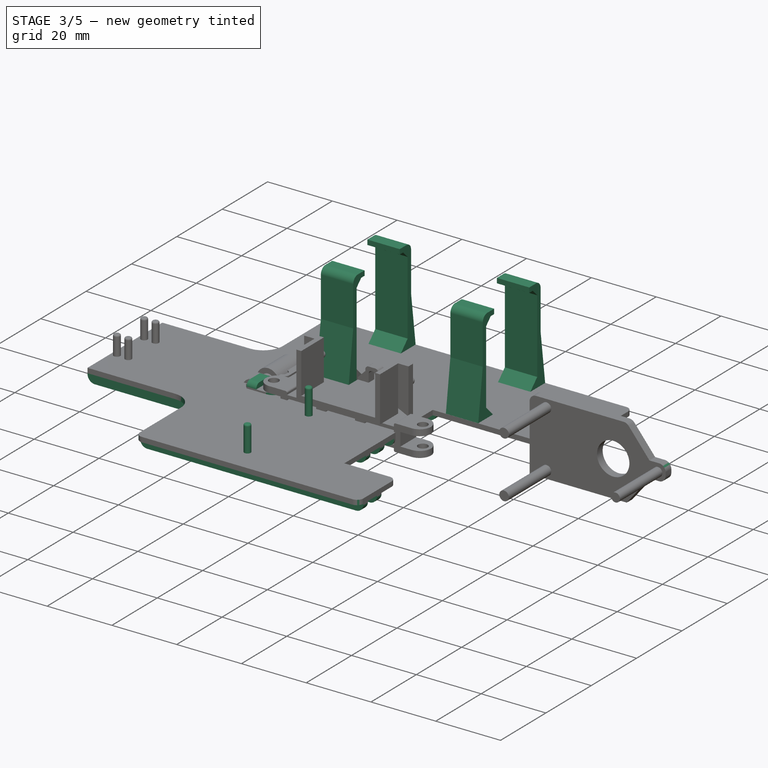
[diagram: stage 3 of 5 — iso view after this stage's code; geometry added in this stage tinted green]
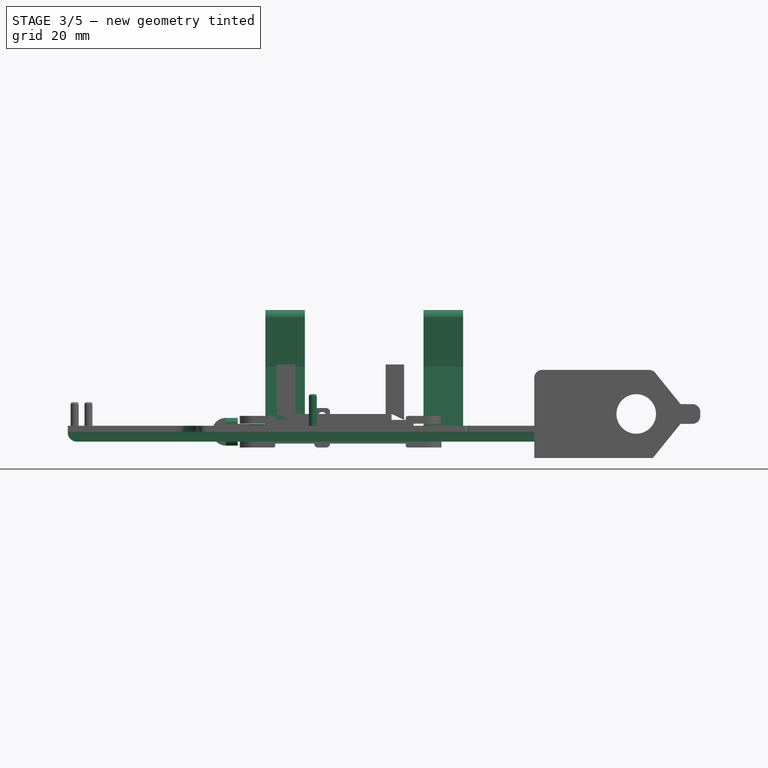
[diagram: stage 3 of 5 — front view after this stage's code; geometry added in this stage tinted green]
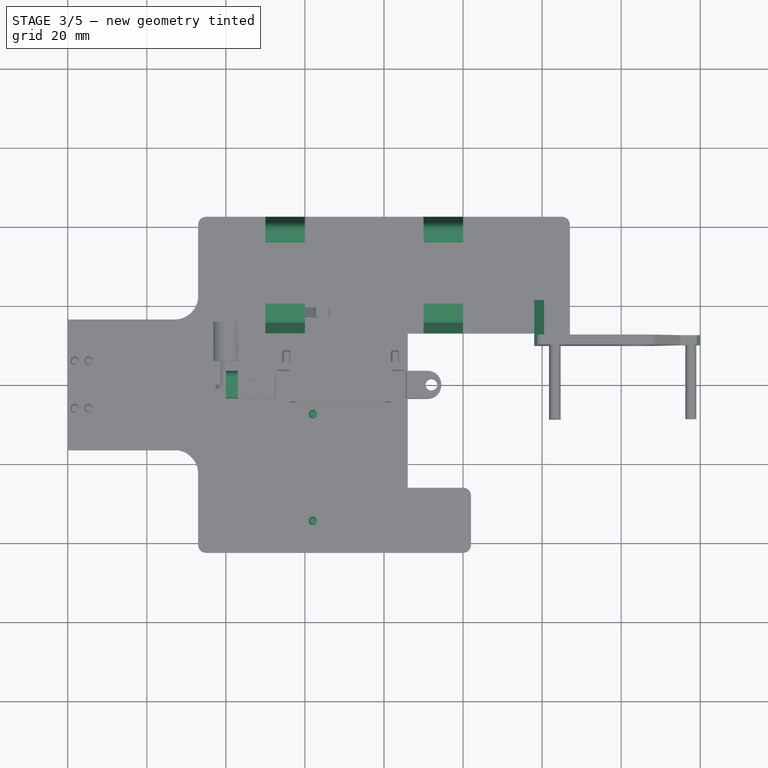
[diagram: stage 3 of 5 — top view after this stage's code; geometry added in this stage tinted green]
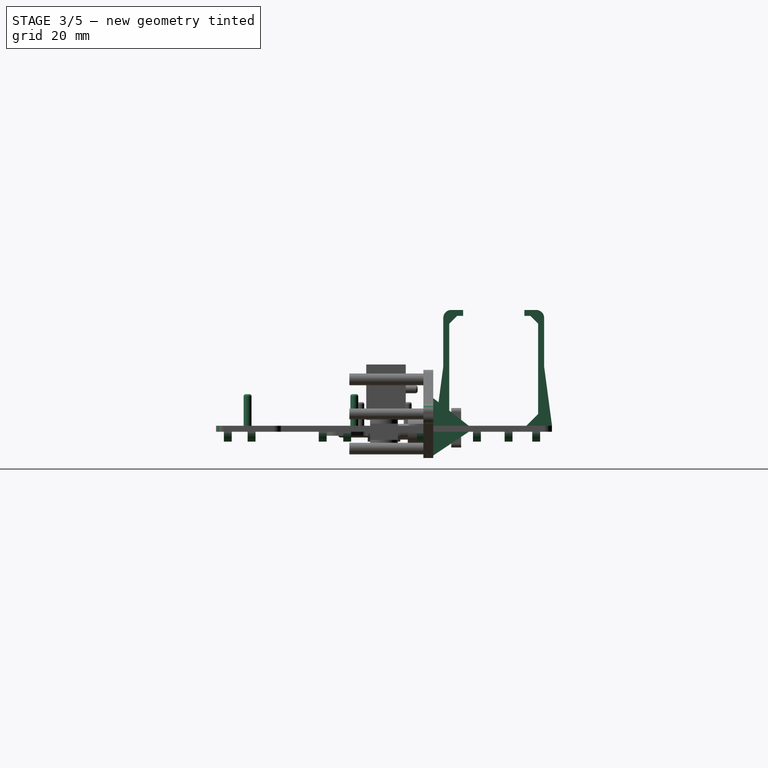
[diagram: stage 3 of 5 — right view after this stage's code; geometry added in this stage tinted green]
FEATURE [PartDesign::Body] Body001  label="wheel-ref0"
  Group = -> [Sketch004,Pad002,Thickness,Fillet,Sketch005,Pad003,Sketch006,Pocket002,Sketch007,Pocket003]
  Origin = -> Origin001
  Placement = pos=(-13.9,3e-15,-3e-15) rot=(0,0,1;1.5708rad)
  Tip = -> Pocket003
FEATURE [Sketcher::SketchObject] Sketch008
  FullyConstrained = true
  MapMode = 5
  Support = -> [XY_Plane002]
  sketch-geometry (9):
    g0: LineSegment StartX=0 StartY=3.5 StartZ=0 EndX=3 EndY=3.5 EndZ=0
    g1: LineSegment StartX=3 StartY=3.5 StartZ=0 EndX=3 EndY=-3.5 EndZ=0
    g2: LineSegment StartX=3 StartY=-3.5 StartZ=0 EndX=0 EndY=-3.5 EndZ=0
    g3: LineSegment StartX=0 StartY=-3.5 StartZ=0 EndX=0 EndY=3.5 EndZ=0
    g4: Circle CenterX=6 CenterY=0 CenterZ=0 NormalX=0 NormalY=0 NormalZ=1 AngleXU=0 Radius=1.5
    g5: ArcOfCircle CenterX=6 CenterY=0 CenterZ=0 NormalX=0 NormalY=0 NormalZ=1 AngleXU=0 Radius=3.5 StartAngle=4.71239 EndAngle=7.85398
    g6: LineSegment StartX=6 StartY=3.5 StartZ=0 EndX=3 EndY=3.5 EndZ=0
    g7: LineSegment StartX=3 StartY=3.5 StartZ=0 EndX=3 EndY=-3.5 EndZ=0
    g8: LineSegment StartX=3 StartY=-3.5 StartZ=0 EndX=6 EndY=-3.5 EndZ=0
  constraints (24):
    c: Coincident(g0,g1)
    c: Coincident(g1,g2)
    c: Coincident(g2,g3)
    c: Coincident(g3,g0)
    c: Horizontal(g0)
    c: Horizontal(g2)
    c: Vertical(g1)
    c: Vertical(g3)
    c: Symmetric(g0,g2,g-1)
    c: DistanceY(g3,g3) = 7
    c: DistanceX(g0,g0) = 3
    c: PointOnObject(g4,g-1)
    c: Radius(g4) = 1.5
    c: DistanceX(g-1,g4) = 6
    c: Coincident(g5,g4)
    c: Radius(g5) = 3.5
    c: Tangent(g5,g6) = -1.5708
    c: Coincident(g6,g7)
    c: Coincident(g7,g1)
    c: Vertical(g7)
    c: Coincident(g7,g8)
    c: Coincident(g8,g5)
    c: Horizontal(g8)
    c: Equal(g6,g8)
FEATURE [PartDesign::Pad] Pad004
  Direction = (0,0,1)
  Length = 4
  Length2 = 10
  Midplane = true
  Profile = -> Sketch008
  ReferenceAxis = -> Sketch008 [N_Axis]
  Type = 0
FEATURE [Sketcher::SketchObject] Sketch009
  FullyConstrained = true
  MapMode = 5
  Placement = pos=(3,0,0) rot=(0.57735,-0.57735,-0.57735;2.0944rad)
  Support = -> [Pad004]
  sketch-geometry (8):
    g0: LineSegment StartX=-2 StartY=3.5 StartZ=0 EndX=2 EndY=3.5 EndZ=0
    g1: LineSegment StartX=3.5 StartY=2 StartZ=0 EndX=3.5 EndY=-2 EndZ=0
    g2: LineSegment StartX=2 StartY=-3.5 StartZ=0 EndX=-2 EndY=-3.5 EndZ=0
    g3: LineSegment StartX=-3.5 StartY=-2 StartZ=0 EndX=-3.5 EndY=2 EndZ=0
    g4: ArcOfCircle CenterX=-2 CenterY=2 CenterZ=0 NormalX=0 NormalY=0 NormalZ=1 AngleXU=0 Radius=1.5 StartAngle=1.5708 EndAngle=3.14159
    g5: ArcOfCircle CenterX=2 CenterY=2 CenterZ=0 NormalX=0 NormalY=0 NormalZ=1 AngleXU=0 Radius=1.5 StartAngle=0 EndAngle=1.5708
    g6: ArcOfCircle CenterX=-2 CenterY=-2 CenterZ=0 NormalX=0 NormalY=0 NormalZ=1 AngleXU=0 Radius=1.5 StartAngle=3.14159 EndAngle=4.71239
    g7: ArcOfCircle CenterX=2 CenterY=-2 CenterZ=0 NormalX=0 NormalY=0 NormalZ=1 AngleXU=0 Radius=1.5 StartAngle=4.71239 EndAngle=6.28319
  constraints (18):
    c: Horizontal(g2)
    c: Vertical(g1)
    c: Tangent(g3,g4) = 1.5708
    c: Tangent(g0,g4) = 1.5708
    c: Tangent(g0,g5) = 1.5708
    c: Tangent(g1,g5) = 1.5708
    c: Tangent(g3,g6) = 1.5708
    c: Tangent(g2,g6) = 1.5708
    c: Tangent(g2,g7) = 1.5708
    c: Tangent(g1,g7) = 1.5708
    c: Symmetric(g3,g1,g-2)
    c: Symmetric(g0,g2,g-1)
    c: Vertical(g3)
    c: DistanceX(g3,g1) = 7
    c: DistanceY(g2,g0) = 7
    c: Equal(g4,g5)
    c: Equal(g7,g6)
    c: Radius(g5) = 1.5
FEATURE [PartDesign::Pad] Pad005
  BaseFeature = -> Pad004
  Direction = (-1,0,0)
  Length = 3
  Length2 = 10
  Profile = -> Sketch009
  ReferenceAxis = -> Sketch009 [N_Axis]
  Type = 0
FEATURE [Sketcher::SketchObject] Sketch010
  FullyConstrained = true
  MapMode = 5
  Placement = pos=(-4e-16,0,0) rot=(0.57735,-0.57735,-0.57735;2.0944rad)
  Support = -> [Pad005]
  sketch-geometry (1):
    g0: Circle CenterX=0 CenterY=0 CenterZ=0 NormalX=0 NormalY=0 NormalZ=1 AngleXU=0 Radius=2.6
  constraints (2):
    c: Coincident(g0,g-1)
    c: Radius(g0) = 2.6
FEATURE [PartDesign::Pocket] Pocket004
  BaseFeature = -> Pad005
  Direction = (1,0,0)
  Length = 1.8
  Length2 = 5
  Profile = -> Sketch010
  ReferenceAxis = -> Sketch010 [N_Axis]
  Type = 0
FEATURE [Sketcher::SketchObject] Sketch011
  FullyConstrained = true
  MapMode = 5
  Placement = pos=(1.8,0,0) rot=(0.57735,-0.57735,-0.57735;2.0944rad)
  Support = -> [Pocket004]
  sketch-geometry (1):
    g0: Circle CenterX=0 CenterY=0 CenterZ=0 NormalX=0 NormalY=0 NormalZ=1 AngleXU=0 Radius=1.3
  constraints (2):
    c: Coincident(g0,g-1)
    c: Radius(g0) = 1.3
FEATURE [PartDesign::Pocket] Pocket005
  BaseFeature = -> Pocket004
  Direction = (1,0,0)
  Length = 2
  Length2 = 5
  Profile = -> Sketch011
  ReferenceAxis = -> Sketch011 [N_Axis]
  Type = 0
FEATURE [Sketcher::SketchObject] Sketch012
  FullyConstrained = true
  MapMode = 5
  Support = -> [XY_Plane002]
  sketch-geometry (12):
    g0: ArcOfCircle CenterX=10 CenterY=-12 CenterZ=0 NormalX=0 NormalY=0 NormalZ=1 AngleXU=0 Radius=2.5 StartAngle=3.1416 EndAngle=6.28319
    g1: LineSegment StartX=0 StartY=-3.5 StartZ=0 EndX=0 EndY=-6 EndZ=0
    g2: LineSegment StartX=1.45992 StartY=-8.27338 StartZ=0 EndX=6.62405 EndY=-10.636 EndZ=0
    g3: LineSegment StartX=7.5 StartY=-12 StartZ=0 EndX=7.5 EndY=-12 EndZ=0
    g4: LineSegment StartX=12.5 StartY=-12 StartZ=0 EndX=12.5 EndY=-10.5 EndZ=0
    g5: LineSegment StartX=11.0401 StartY=-8.22662 StartZ=0 EndX=5.87595 EndY=-5.86403 EndZ=0
    g6: LineSegment StartX=5 StartY=-4.5 StartZ=0 EndX=5 EndY=-3.5 EndZ=0
    g7: LineSegment StartX=5 StartY=-3.5 StartZ=0 EndX=0 EndY=-3.5 EndZ=0
    g8: ArcOfCircle CenterX=6.5 CenterY=-4.5 CenterZ=0 NormalX=0 NormalY=0 NormalZ=1 AngleXU=0 Radius=1.5 StartAngle=3.14159 EndAngle=4.28331
    g9: ArcOfCircle CenterX=10 CenterY=-10.5 CenterZ=0 NormalX=0 NormalY=0 NormalZ=1 AngleXU=0 Radius=2.5 StartAngle=1e-16 EndAngle=1.14172
    g10: ArcOfCircle CenterX=6 CenterY=-12 CenterZ=0 NormalX=0 NormalY=0 NormalZ=1 AngleXU=0 Radius=1.5 StartAngle=-9e-16 EndAngle=1.14172
    g11: ArcOfCircle CenterX=2.5 CenterY=-6 CenterZ=0 NormalX=0 NormalY=0 NormalZ=1 AngleXU=0 Radius=2.5 StartAngle=3.14159 EndAngle=4.28331
  constraints (32):
    c: PointOnObject(g1,g-2)
    c: Coincident(g3,g0)
    c: Vertical(g3)
    c: Tangent(g0,g4) = -1.5708
    c: Vertical(g6)
    c: Coincident(g6,g7)
    c: Coincident(g7,g1)
    c: Horizontal(g7)
    c: Vertical(g4)
    c: Radius(g0) = 2.5
    c: DistanceY(g1,g-1) = 3.5
    c: Tangent(g6,g8) = 1.5708
    c: Tangent(g5,g8) = 1.5708
    c: Tangent(g5,g9) = -1.5708
    c: Tangent(g4,g9) = -1.5708
    c: Tangent(g2,g10) = 1.5708
    c: Tangent(g3,g10) = 1.5708
    c: Tangent(g1,g11) = -1.5708
    c: Tangent(g2,g11) = -1.5708
    c: DistanceX(g7,g7) = 5
    c: PointOnObject(g1,g-2)
    c: DistanceX(g0,g0) = 5
    c: DistanceY(g11,g-1) = 6
    c: DistanceY(g8,g1) = 1
    c: DistanceX(g1,g10) = 6
    c: DistanceX(g1,g9) = 10
    c: Parallel(g2,g5)
    c: Equal(g9,g11)
    c: Equal(g10,g8)
    c: DistanceY(g0,g9) = 1.5
    c: DistanceX(g1,g0) = 10
    c: DistanceY(g0,g1) = 8.5
FEATURE [PartDesign::Pad] Pad006
  BaseFeature = -> Pocket005
  Direction = (0,0,1)
  Length = 2
  Length2 = 10
  Midplane = true
  Profile = -> Sketch012
  ReferenceAxis = -> Sketch012 [N_Axis]
  Type = 0
FEATURE [Sketcher::SketchObject] Sketch079
  FullyConstrained = true
  MapMode = 5
  Placement = pos=(78,0,0) rot=(0.57735,-0.57735,-0.57735;2.0944rad)
  Support = -> [Pad051]
  sketch-geometry (6):
    g0: LineSegment StartX=-12.45 StartY=8.5 StartZ=0 EndX=-12.45 EndY=1.5 EndZ=0
    g1: LineSegment StartX=-12.45 StartY=1.5 StartZ=0 EndX=-21.45 EndY=1.5 EndZ=0
    g2: LineSegment StartX=-21.45 StartY=1.5 StartZ=0 EndX=-12.45 EndY=8.5 EndZ=0
    g3: LineSegment StartX=-12.45 StartY=0 StartZ=0 EndX=-12.45 EndY=-6 EndZ=0
    g4: LineSegment StartX=-12.45 StartY=-6 StartZ=0 EndX=-21.45 EndY=0 EndZ=0
    g5: LineSegment StartX=-21.45 StartY=0 StartZ=0 EndX=-12.45 EndY=0 EndZ=0
  constraints (18):
    c: Vertical(g0)
    c: Coincident(g0,g1)
    c: Horizontal(g1)
    c: Coincident(g1,g2)
    c: Coincident(g2,g0)
    c: PointOnObject(g3,g-1)
    c: Vertical(g3)
    c: Coincident(g3,g4)
    c: Coincident(g4,g5)
    c: Coincident(g5,g3)
    c: Horizontal(g5)
    c: Vertical(g3,g0)
    c: DistanceX(g3,g-1) = 12.45
    c: DistanceY(g3,g0) = 1.5
    c: Equal(g5,g1)
    c: DistanceY(g0,g0) = 7
    c: DistanceX(g1,g1) = 9
    c: DistanceY(g3,g3) = 6
FEATURE [PartDesign::Pad] Pad052
  BaseFeature = -> Pad051
  Direction = (-1,0,0)
  Length = 2.5
  Length2 = 10
  Profile = -> Sketch079
  ReferenceAxis = -> Sketch079 [N_Axis]
  Reversed = true
  Type = 0
FEATURE [PartDesign::Body] Body018  label="wheel-ref1"
  Group = -> [Sketch080,Pad053,Thickness001,Fillet031,Sketch081,Pad054,Sketch082,Pocket025,Sketch083,Pocket026]
  Origin = -> Origin018
  Placement = pos=(69.25,-140.3,-3.9e-14) rot=(0,0,-1;1.5708rad)
  Tip = -> Pocket026
FEATURE [Sketcher::SketchObject] Sketch084
  AttachmentOffset = pos=(0,0,10) rot=(0,0,1;0rad)
  FullyConstrained = true
  MapMode = 5
  Placement = pos=(10,-2.2e-15,2.2e-15) rot=(0.57735,0.57735,0.57735;2.0944rad)
  Support = -> [YZ_Plane017]
  sketch-geometry (12):
    g0: LineSegment StartX=15 StartY=1.5 StartZ=0 EndX=16.5 EndY=1.5 EndZ=0
    g1: LineSegment StartX=16.5 StartY=1.5 StartZ=0 EndX=16.5 EndY=29.3 EndZ=0
    g2: LineSegment StartX=16.5 StartY=29.3 StartZ=0 EndX=20 EndY=29.3 EndZ=0
    g3: LineSegment StartX=20 StartY=29.3 StartZ=0 EndX=20 EndY=30.8 EndZ=0
    g4: LineSegment StartX=20 StartY=30.8 StartZ=0 EndX=15 EndY=30.8 EndZ=0
    g5: LineSegment StartX=15 StartY=30.8 StartZ=0 EndX=15 EndY=1.5 EndZ=0
    g6: LineSegment StartX=35.5 StartY=30.8 StartZ=0 EndX=40.5 EndY=30.8 EndZ=0
    g7: LineSegment StartX=40.5 StartY=30.8 StartZ=0 EndX=40.5 EndY=1.5 EndZ=0
    g8: LineSegment StartX=40.5 StartY=1.5 StartZ=0 EndX=39 EndY=1.5 EndZ=0
    g9: LineSegment StartX=39 StartY=1.5 StartZ=0 EndX=39 EndY=29.3 EndZ=0
    g10: LineSegment StartX=39 StartY=29.3 StartZ=0 EndX=35.5 EndY=29.3 EndZ=0
    g11: LineSegment StartX=35.5 StartY=29.3 StartZ=0 EndX=35.5 EndY=30.8 EndZ=0
  constraints (36):
    c: Horizontal(g0)
    c: Coincident(g0,g1)
    c: Vertical(g1)
    c: Coincident(g1,g2)
    c: Horizontal(g2)
    c: Coincident(g2,g3)
    c: Vertical(g3)
    c: Coincident(g3,g4)
    c: Horizontal(g4)
    c: Coincident(g4,g5)
    c: Coincident(g5,g0)
    c: Vertical(g5)
    c: Horizontal(g6)
    c: Coincident(g6,g7)
    c: Vertical(g7)
    c: Coincident(g7,g8)
    c: Horizontal(g8)
    c: Coincident(g8,g9)
    c: Vertical(g9)
    c: Coincident(g9,g10)
    c: Horizontal(g10)
    c: Coincident(g10,g11)
    c: Coincident(g11,g6)
    c: Vertical(g11)
    c: Equal(g6,g4)
    c: DistanceX(g6,g6) = 5
    c: Equal(g11,g3)
    c: Equal(g3,g0)
    c: Equal(g0,g8)
    c: DistanceY(g11,g11) = 1.5
    c: Equal(g1,g9)
    c: Horizontal(g8,g0)
    c: DistanceY(g9,g9) = 27.8
    c: DistanceX(g0,g8) = 22.5
    c: DistanceY(g-1,g7) = 1.5
    c: DistanceX(g-1,g7) = 40.5
FEATURE [Sketcher::SketchObject] Sketch085
  AttachmentOffset = pos=(0,0,50) rot=(0,0,1;0rad)
  FullyConstrained = true
  MapMode = 5
  Placement = pos=(50,-1.11e-14,1.11e-14) rot=(0.57735,0.57735,0.57735;2.0944rad)
  Support = -> [YZ_Plane017]
  sketch-geometry (12):
    g0: LineSegment StartX=15 StartY=1.5 StartZ=0 EndX=16.5 EndY=1.5 EndZ=0
    g1: LineSegment StartX=16.5 StartY=1.5 StartZ=0 EndX=16.5 EndY=29.3 EndZ=0
    g2: LineSegment StartX=16.5 StartY=29.3 StartZ=0 EndX=20 EndY=29.3 EndZ=0
    g3: LineSegment StartX=20 StartY=29.3 StartZ=0 EndX=20 EndY=30.8 EndZ=0
    g4: LineSegment StartX=20 StartY=30.8 StartZ=0 EndX=15 EndY=30.8 EndZ=0
    g5: LineSegment StartX=15 StartY=30.8 StartZ=0 EndX=15 EndY=1.5 EndZ=0
    g6: LineSegment StartX=35.5 StartY=30.8 StartZ=0 EndX=40.5 EndY=30.8 EndZ=0
    g7: LineSegment StartX=40.5 StartY=30.8 StartZ=0 EndX=40.5 EndY=1.5 EndZ=0
    g8: LineSegment StartX=40.5 StartY=1.5 StartZ=0 EndX=39 EndY=1.5 EndZ=0
    g9: LineSegment StartX=39 StartY=1.5 StartZ=0 EndX=39 EndY=29.3 EndZ=0
    g10: LineSegment StartX=39 StartY=29.3 StartZ=0 EndX=35.5 EndY=29.3 EndZ=0
    g11: LineSegment StartX=35.5 StartY=29.3 StartZ=0 EndX=35.5 EndY=30.8 EndZ=0
  constraints (36):
    c: Horizontal(g0)
    c: Coincident(g0,g1)
    c: Vertical(g1)
    c: Coincident(g1,g2)
    c: Horizontal(g2)
    c: Coincident(g2,g3)
    c: Vertical(g3)
    c: Coincident(g3,g4)
    c: Horizontal(g4)
    c: Coincident(g4,g5)
    c: Coincident(g5,g0)
    c: Vertical(g5)
    c: Horizontal(g6)
    c: Coincident(g6,g7)
    c: Vertical(g7)
    c: Coincident(g7,g8)
    c: Horizontal(g8)
    c: Coincident(g8,g9)
    c: Vertical(g9)
    c: Coincident(g9,g10)
    c: Horizontal(g10)
    c: Coincident(g10,g11)
    c: Coincident(g11,g6)
    c: Vertical(g11)
    c: Equal(g6,g4)
    c: DistanceX(g6,g6) = 5
    c: Equal(g11,g3)
    c: Equal(g3,g0)
    c: Equal(g0,g8)
    c: DistanceY(g11,g11) = 1.5
    c: Equal(g1,g9)
    c: Horizontal(g8,g0)
    c: DistanceY(g9,g9) = 27.8
    c: DistanceX(g0,g8) = 22.5
    c: DistanceY(g-1,g7) = 1.5
    c: DistanceX(g-1,g7) = 40.5
FEATURE [PartDesign::Pad] Pad055
  BaseFeature = -> Pad052
  Direction = (1,-2e-16,3e-16)
  Length = 10
  Length2 = 10
  Profile = -> Sketch084
  ReferenceAxis = -> Sketch084 [N_Axis]
  Type = 0
FEATURE [PartDesign::Pad] Pad056
  BaseFeature = -> Pad055
  Direction = (1,-2e-16,3e-16)
  Length = 10
  Length2 = 10
  Profile = -> Sketch085
  ReferenceAxis = -> Sketch085 [N_Axis]
  Type = 0
FEATURE [Sketcher::SketchObject] Sketch086
  ExternalGeometry = -> [Pad056]
  FullyConstrained = true
  MapMode = 5
  Placement = pos=(0,0,1.5) rot=(0,0,1;0rad)
  Support = -> [Pad056]
  sketch-geometry (2):
    g0: Circle CenterX=22 CenterY=-7.5 CenterZ=0 NormalX=0 NormalY=0 NormalZ=1 AngleXU=0 Radius=1
    g1: Circle CenterX=22 CenterY=-34.5 CenterZ=0 NormalX=0 NormalY=0 NormalZ=1 AngleXU=0 Radius=1
  constraints (6):
    c: Equal(g0,g1)
    c: Vertical(g0,g1)
    c: Radius(g0) = 1
    c: DistanceY(g1,g0) = 27
    c: DistanceX(g-3,g1) = 29
    c: DistanceY(g-3,g1) = 8
FEATURE [Sketcher::SketchObject] Sketch090
  AttachmentOffset = pos=(0,0,-4) rot=(0,0,1;0rad)
  FullyConstrained = true
  MapMode = 5
  Placement = pos=(0,38.5,1e-15) rot=(0,0.707107,0.707107;3.14159rad)
  sketch-geometry (4):
    g0: LineSegment StartX=-87 StartY=0 StartZ=0 EndX=7 EndY=0 EndZ=0
    g1: LineSegment StartX=7 StartY=0 StartZ=0 EndX=7 EndY=-2.5 EndZ=0
    g2: LineSegment StartX=7 StartY=-2.5 StartZ=0 EndX=-87 EndY=-2.5 EndZ=0
    g3: LineSegment StartX=-87 StartY=-2.5 StartZ=0 EndX=-87 EndY=0 EndZ=0
  constraints (12):
    c: Coincident(g0,g1)
    c: Coincident(g1,g2)
    c: Coincident(g2,g3)
    c: Coincident(g3,g0)
    c: Horizontal(g0)
    c: Horizontal(g2)
    c: Vertical(g1)
    c: Vertical(g3)
    c: PointOnObject(g0,g-1)
    c: DistanceY(g1,g1) = 2.5
    c: DistanceX(g0,g0) = 94
    c: DistanceX(g-1,g0) = 7
FEATURE [PartDesign::Pad] Pad057
  BaseFeature = -> Pad056
  Direction = (0,0,1)
  Length = 8
  Length2 = 10
  Profile = -> Sketch086
  ReferenceAxis = -> Sketch086 [N_Axis]
  Type = 0
FEATURE [PartDesign::Pad] Pad061
  BaseFeature = -> Pad057
  Direction = (0,1,-2e-16)
  Length = 2
  Length2 = 10
  Midplane = true
  Profile = -> Sketch090
  ReferenceAxis = -> Sketch090 [N_Axis]
  Type = 0
FEATURE [Sketcher::SketchObject] Sketch091
  AttachmentOffset = pos=(0,0,-11) rot=(0,0,1;0rad)
  FullyConstrained = true
  MapMode = 5
  Placement = pos=(0,31.5,2.4e-15) rot=(0,0.707107,0.707107;3.14159rad)
  Support = -> [Pad061]
  sketch-geometry (4):
    g0: LineSegment StartX=-87 StartY=0 StartZ=0 EndX=7 EndY=0 EndZ=0
    g1: LineSegment StartX=7 StartY=0 StartZ=0 EndX=7 EndY=-2.5 EndZ=0
    g2: LineSegment StartX=7 StartY=-2.5 StartZ=0 EndX=-87 EndY=-2.5 EndZ=0
    g3: LineSegment StartX=-87 StartY=-2.5 StartZ=0 EndX=-87 EndY=0 EndZ=0
  constraints (12):
    c: Coincident(g0,g1)
    c: Coincident(g1,g2)
    c: Coincident(g2,g3)
    c: Coincident(g3,g0)
    c: Horizontal(g0)
    c: Horizontal(g2)
    c: Vertical(g1)
    c: Vertical(g3)
    c: PointOnObject(g0,g-1)
    c: DistanceX(g0,g0) = 94
    c: DistanceY(g1,g1) = 2.5
    c: DistanceX(g-1,g0) = 7
FEATURE [PartDesign::Pad] Pad062
  BaseFeature = -> Pad061
  Direction = (0,1,-2e-16)
  Length = 2
  Length2 = 10
  Midplane = true
  Profile = -> Sketch091
  ReferenceAxis = -> Sketch091 [N_Axis]
  Type = 0
FEATURE [Sketcher::SketchObject] Sketch092
  AttachmentOffset = pos=(0,0,-19) rot=(0,0,1;0rad)
  FullyConstrained = true
  MapMode = 5
  Placement = pos=(0,23.5,4.2e-15) rot=(0,0.707107,0.707107;3.14159rad)
  Support = -> [Pad062]
  sketch-geometry (4):
    g0: LineSegment StartX=-87 StartY=0 StartZ=0 EndX=7 EndY=0 EndZ=0
    g1: LineSegment StartX=7 StartY=0 StartZ=0 EndX=7 EndY=-2.5 EndZ=0
    g2: LineSegment StartX=7 StartY=-2.5 StartZ=0 EndX=-87 EndY=-2.5 EndZ=0
    g3: LineSegment StartX=-87 StartY=-2.5 StartZ=0 EndX=-87 EndY=0 EndZ=0
  constraints (12):
    c: Coincident(g0,g1)
    c: Coincident(g1,g2)
    c: Coincident(g2,g3)
    c: Coincident(g3,g0)
    c: Horizontal(g0)
    c: Horizontal(g2)
    c: Vertical(g1)
    c: Vertical(g3)
    c: PointOnObject(g0,g-1)
    c: DistanceX(g-1,g0) = 7
    c: DistanceY(g1,g1) = 2.5
    c: DistanceX(g2,g2) = 94
FEATURE [PartDesign::Pad] Pad063
  BaseFeature = -> Pad062
  Direction = (0,1,-2e-16)
  Length = 2
  Length2 = 10
  Midplane = true
  Profile = -> Sketch092
  ReferenceAxis = -> Sketch092 [N_Axis]
  Type = 0
FEATURE [Sketcher::SketchObject] Sketch093
  FullyConstrained = true
  MapMode = 5
  Placement = pos=(0,-42.5,0) rot=(1,0,0;1.5708rad)
  Support = -> [Pad063]
  sketch-geometry (4):
    g0: LineSegment StartX=-7 StartY=0 StartZ=0 EndX=62 EndY=0 EndZ=0
    g1: LineSegment StartX=62 StartY=0 StartZ=0 EndX=62 EndY=-2.5 EndZ=0
    g2: LineSegment StartX=62 StartY=-2.5 StartZ=0 EndX=-7 EndY=-2.5 EndZ=0
    g3: LineSegment StartX=-7 StartY=-2.5 StartZ=0 EndX=-7 EndY=0 EndZ=0
  constraints (12):
    c: Coincident(g0,g1)
    c: Coincident(g1,g2)
    c: Coincident(g2,g3)
    c: Coincident(g3,g0)
    c: Horizontal(g0)
    c: Horizontal(g2)
    c: Vertical(g1)
    c: Vertical(g3)
    c: PointOnObject(g0,g-1)
    c: DistanceY(g1,g1) = 2.5
    c: DistanceX(g2,g2) = 69
    c: DistanceX(g0,g-1) = 7
FEATURE [PartDesign::Pad] Pad064
  BaseFeature = -> Pad063
  Direction = (0,-1,2e-16)
  Length = 14
  Length2 = 10
  Profile = -> Sketch093
  ReferenceAxis = -> Sketch093 [N_Axis]
  Reversed = true
  Type = 0
FEATURE [Sketcher::SketchObject] Sketch094
  ExternalGeometry = -> [Pad064]
  FullyConstrained = true
  MapMode = 5
  Placement = pos=(62,0,0) rot=(0.57735,0.57735,0.57735;2.0944rad)
  Support = -> [Pad064]
  sketch-geometry (12):
    g0: LineSegment StartX=-42.5 StartY=0 StartZ=0 EndX=-40.5 EndY=0 EndZ=0
    g1: LineSegment StartX=-40.5 StartY=0 StartZ=0 EndX=-40.5 EndY=-2.5 EndZ=0
    g2: LineSegment StartX=-40.5 StartY=-2.5 StartZ=0 EndX=-42.5 EndY=-2.5 EndZ=0
    g3: LineSegment StartX=-42.5 StartY=-2.5 StartZ=0 EndX=-42.5 EndY=0 EndZ=0
    g4: LineSegment StartX=-38.5 StartY=0 StartZ=0 EndX=-34.5 EndY=0 EndZ=0
    g5: LineSegment StartX=-34.5 StartY=0 StartZ=0 EndX=-34.5 EndY=-2.5 EndZ=0
    g6: LineSegment StartX=-34.5 StartY=-2.5 StartZ=0 EndX=-38.5 EndY=-2.5 EndZ=0
    g7: LineSegment StartX=-38.5 StartY=-2.5 StartZ=0 EndX=-38.5 EndY=0 EndZ=0
    g8: LineSegment StartX=-32.5 StartY=0 StartZ=0 EndX=-28.5 EndY=0 EndZ=0
    g9: LineSegment StartX=-28.5 StartY=0 StartZ=0 EndX=-28.5 EndY=-2.5 EndZ=0
    g10: LineSegment StartX=-28.5 StartY=-2.5 StartZ=0 EndX=-32.5 EndY=-2.5 EndZ=0
    g11: LineSegment StartX=-32.5 StartY=-2.5 StartZ=0 EndX=-32.5 EndY=0 EndZ=0
  constraints (35):
    c: Coincident(g0,g1)
    c: Coincident(g1,g2)
    c: Coincident(g2,g3)
    c: Coincident(g3,g0)
    c: Horizontal(g0)
    c: Horizontal(g2)
    c: Vertical(g1)
    c: Vertical(g3)
    c: Coincident(g0,g-3)
    c: Coincident(g4,g5)
    c: Coincident(g5,g6)
    c: Coincident(g6,g7)
    c: Coincident(g7,g4)
    c: Horizontal(g4)
    c: Horizontal(g6)
    c: Vertical(g5)
    c: Vertical(g7)
    c: PointOnObject(g4,g-1)
    c: Coincident(g8,g9)
    c: Coincident(g9,g10)
    c: Coincident(g10,g11)
    c: Coincident(g11,g8)
    c: Horizontal(g8)
    c: Horizontal(g10)
    c: Vertical(g9)
    c: Vertical(g11)
    c: PointOnObject(g8,g-1)
    c: DistanceY(g3,g3) = 2.5
    c: Equal(g3,g7)
    c: Equal(g7,g11)
    c: DistanceX(g10,g10) = 4
    c: DistanceX(g1,g6) = 2
    c: DistanceX(g5,g10) = 2
    c: DistanceX(g6,g6) = 4
    c: DistanceX(g2,g2) = 2
FEATURE [PartDesign::Pocket] Pocket027
  BaseFeature = -> Pad064
  Direction = (-1,0,0)
  Length = 5
  Length2 = 5
  Profile = -> Sketch094
  ReferenceAxis = -> Sketch094 [N_Axis]
  Type = 1
FEATURE [Sketcher::SketchObject] Sketch095
  ExternalGeometry = -> [Pocket027]
  FullyConstrained = true
  MapMode = 5
  Placement = pos=(-40,0,0) rot=(0.57735,-0.57735,-0.57735;2.0944rad)
  Support = -> [Pocket027]
  sketch-geometry (24):
    g0: LineSegment StartX=-16.5 StartY=0 StartZ=0 EndX=-14.5 EndY=0 EndZ=0
    g1: LineSegment StartX=-14.5 StartY=0 StartZ=0 EndX=-14.5 EndY=-2.5 EndZ=0
    g2: LineSegment StartX=-14.5 StartY=-2.5 StartZ=0 EndX=-16.5 EndY=-2.5 EndZ=0
    g3: LineSegment StartX=-16.5 StartY=-2.5 StartZ=0 EndX=-16.5 EndY=0 EndZ=0
    g4: LineSegment StartX=-10.3 StartY=0 StartZ=0 EndX=-8.3 EndY=0 EndZ=0
    g5: LineSegment StartX=-8.3 StartY=0 StartZ=0 EndX=-8.3 EndY=-2.5 EndZ=0
    g6: LineSegment StartX=-8.3 StartY=-2.5 StartZ=0 EndX=-10.3 EndY=-2.5 EndZ=0
    g7: LineSegment StartX=-10.3 StartY=-2.5 StartZ=0 EndX=-10.3 EndY=0 EndZ=0
    g8: LineSegment StartX=-4.1 StartY=0 StartZ=0 EndX=-2.1 EndY=0 EndZ=0
    g9: LineSegment StartX=-2.1 StartY=0 StartZ=0 EndX=-2.1 EndY=-2.5 EndZ=0
    g10: LineSegment StartX=-2.1 StartY=-2.5 StartZ=0 EndX=-4.1 EndY=-2.5 EndZ=0
    g11: LineSegment StartX=-4.1 StartY=-2.5 StartZ=0 EndX=-4.1 EndY=0 EndZ=0
    g12: LineSegment StartX=2.1 StartY=0 StartZ=0 EndX=4.1 EndY=0 EndZ=0
    g13: LineSegment StartX=4.1 StartY=0 StartZ=0 EndX=4.1 EndY=-2.5 EndZ=0
    g14: LineSegment StartX=4.1 StartY=-2.5 StartZ=0 EndX=2.1 EndY=-2.5 EndZ=0
    g15: LineSegment StartX=2.1 StartY=-2.5 StartZ=0 EndX=2.1 EndY=0 EndZ=0
    g16: LineSegment StartX=8.3 StartY=0 StartZ=0 EndX=10.3 EndY=0 EndZ=0
    g17: LineSegment StartX=10.3 StartY=0 StartZ=0 EndX=10.3 EndY=-2.5 EndZ=0
    g18: LineSegment StartX=10.3 StartY=-2.5 StartZ=0 EndX=8.3 EndY=-2.5 EndZ=0
    g19: LineSegment StartX=8.3 StartY=-2.5 StartZ=0 EndX=8.3 EndY=0 EndZ=0
    g20: LineSegment StartX=16.5 StartY=0 StartZ=0 EndX=14.5 EndY=0 EndZ=0
    g21: LineSegment StartX=14.5 StartY=0 StartZ=0 EndX=14.5 EndY=-2.5 EndZ=0
    g22: LineSegment StartX=14.5 StartY=-2.5 StartZ=0 EndX=16.5 EndY=-2.5 EndZ=0
    g23: LineSegment StartX=16.5 StartY=-2.5 StartZ=0 EndX=16.5 EndY=0 EndZ=0
  constraints (70):
    c: Coincident(g0,g1)
    c: Coincident(g1,g2)
    c: Coincident(g2,g3)
    c: Coincident(g3,g0)
    c: Horizontal(g0)
    c: Horizontal(g2)
    c: Vertical(g1)
    c: Vertical(g3)
    c: Coincident(g0,g-4)
    c: Coincident(g4,g5)
    c: Coincident(g5,g6)
    c: Coincident(g6,g7)
    c: Coincident(g7,g4)
    c: Horizontal(g4)
    c: Horizontal(g6)
    c: Vertical(g5)
    c: Vertical(g7)
    c: PointOnObject(g4,g-1)
    c: Coincident(g8,g9)
    c: Coincident(g9,g10)
    c: Coincident(g10,g11)
    c: Coincident(g11,g8)
    c: Horizontal(g8)
    c: Horizontal(g10)
    c: Vertical(g9)
    c: Vertical(g11)
    c: PointOnObject(g8,g-1)
    c: Coincident(g12,g13)
    c: Coincident(g13,g14)
    c: Coincident(g14,g15)
    c: Coincident(g15,g12)
    c: Horizontal(g12)
    c: Horizontal(g14)
    c: Vertical(g13)
    c: Vertical(g15)
    c: PointOnObject(g12,g-1)
    c: Coincident(g16,g17)
    c: Coincident(g17,g18)
    c: Coincident(g18,g19)
    c: Coincident(g19,g16)
    c: Horizontal(g16)
    c: Horizontal(g18)
    c: Vertical(g17)
    c: Vertical(g19)
    c: PointOnObject(g16,g-1)
    c: Coincident(g20,g21)
    c: Coincident(g21,g22)
    c: Coincident(g22,g23)
    c: Coincident(g23,g20)
    c: Horizontal(g20)
    c: Horizontal(g22)
    c: Vertical(g21)
    c: Vertical(g23)
    c: Coincident(g20,g-3)
    c: Equal(g23,g17)
    c: Equal(g17,g13)
    c: Equal(g13,g9)
    c: Equal(g9,g5)
    c: Equal(g5,g1)
    c: DistanceY(g23,g23) = 2.5
    c: Equal(g22,g18)
    c: Equal(g18,g14)
    c: Equal(g14,g10)
    c: Equal(g10,g6)
    c: Equal(g6,g2)
    c: DistanceX(g22,g22) = 2
    c: DistanceX(g1,g6) = 4.2
    c: DistanceX(g5,g10) = 4.2
    c: DistanceX(g9,g14) = 4.2
    c: DistanceX(g13,g18) = 4.2
FEATURE [PartDesign::Pad] Pad065
  BaseFeature = -> Pocket027
  Direction = (-1,0,0)
  Length = 86
  Length2 = 10
  Profile = -> Sketch095
  ReferenceAxis = -> Sketch095 [N_Axis]
  Reversed = true
  Type = 0
FEATURE [Sketcher::SketchObject] Sketch096
  ExternalGeometry = -> [Pad065]
  FullyConstrained = true
  MapMode = 5
  Placement = pos=(10,-2.2e-15,2.4e-15) rot=(-0.57735,0.57735,0.57735;4.18879rad)
  Support = -> [Pad065]
  sketch-geometry (6):
    g0: LineSegment StartX=-15 StartY=1.5 StartZ=0 EndX=-13 EndY=1.5 EndZ=0
    g1: LineSegment StartX=-13 StartY=1.5 StartZ=0 EndX=-15 EndY=16.5 EndZ=0
    g2: LineSegment StartX=-15 StartY=16.5 StartZ=0 EndX=-15 EndY=1.5 EndZ=0
    g3: LineSegment StartX=-40.5 StartY=1.5 StartZ=0 EndX=-40.5 EndY=16.5 EndZ=0
    g4: LineSegment StartX=-40.5 StartY=16.5 StartZ=0 EndX=-42.5 EndY=1.5 EndZ=0
    g5: LineSegment StartX=-42.5 StartY=1.5 StartZ=0 EndX=-40.5 EndY=1.5 EndZ=0
  constraints (16):
    c: Coincident(g-3,g0)
    c: Horizontal(g0)
    c: Coincident(g0,g1)
    c: PointOnObject(g1,g-3)
    c: Coincident(g1,g2)
    c: Coincident(g2,g0)
    c: DistanceX(g0,g0) = 2
    c: DistanceY(g2,g2) = 15
    c: Coincident(g-4,g3)
    c: PointOnObject(g3,g-4)
    c: Coincident(g3,g4)
    c: Coincident(g4,g5)
    c: Coincident(g5,g3)
    c: Horizontal(g5)
    c: Equal(g0,g5)
    c: Equal(g3,g2)
FEATURE [PartDesign::Pad] Pad066
  BaseFeature = -> Pad065
  Direction = (-1,2e-16,-2e-16)
  Length = 10
  Length2 = 10
  Profile = -> Sketch096
  ReferenceAxis = -> Sketch096 [N_Axis]
  Reversed = true
  Type = 0
FEATURE [Sketcher::SketchObject] Sketch097
  ExternalGeometry = -> [Pad066]
  FullyConstrained = true
  MapMode = 5
  Placement = pos=(60,-8.4e-15,7.2e-15) rot=(0.57735,0.57735,0.57735;2.0944rad)
  Support = -> [Pad066]
  sketch-geometry (6):
    g0: LineSegment StartX=40.5 StartY=1.5 StartZ=0 EndX=42.5 EndY=1.5 EndZ=0
    g1: LineSegment StartX=42.5 StartY=1.5 StartZ=0 EndX=40.5 EndY=16.5 EndZ=0
    g2: LineSegment StartX=40.5 StartY=16.5 StartZ=0 EndX=40.5 EndY=1.5 EndZ=0
    g3: LineSegment StartX=15 StartY=1.5 StartZ=0 EndX=13 EndY=1.5 EndZ=0
    g4: LineSegment StartX=13 StartY=1.5 StartZ=0 EndX=15 EndY=16.5 EndZ=0
    g5: LineSegment StartX=15 StartY=16.5 StartZ=0 EndX=15 EndY=1.5 EndZ=0
  constraints (16):
    c: Coincident(g-4,g0)
    c: Horizontal(g0)
    c: Coincident(g0,g1)
    c: PointOnObject(g1,g-4)
    c: Coincident(g1,g2)
    c: Coincident(g2,g0)
    c: Coincident(g-3,g3)
    c: Horizontal(g3)
    c: Coincident(g3,g4)
    c: PointOnObject(g4,g-3)
    c: Coincident(g4,g5)
    c: Coincident(g5,g3)
    c: Equal(g0,g3)
    c: Equal(g2,g5)
    c: DistanceX(g0,g0) = 2
    c: DistanceY(g2,g2) = 15
FEATURE [PartDesign::Pad] Pad067
  BaseFeature = -> Pad066
  Direction = (1,0,0)
  Length = 10
  Length2 = 10
  Profile = -> Sketch097
  ReferenceAxis = -> Sketch097 [N_Axis]
  Reversed = true
  Type = 0
FEATURE [PartDesign::Chamfer] Chamfer002
  Angle = 45
  Base = -> Pad067 [Edge43,Edge60,Edge67,Edge48]
  BaseFeature = -> Pad067
  ChamferType = 0
  FlipDirection = false
  Size = 3
  Size2 = 1
  SupportTransform = false
  UseAllEdges = false
FEATURE [PartDesign::Chamfer] Chamfer003
  Angle = 45
  Base = -> Chamfer002 [Edge354,Edge358,Edge284,Edge225]
  BaseFeature = -> Chamfer002
  ChamferType = 0
  FlipDirection = false
  Size = 2
  Size2 = 1
  SupportTransform = false
  UseAllEdges = false
FEATURE [PartDesign::Fillet] Fillet032
  Base = -> Chamfer003 [Edge297,Edge373,Edge73,Edge368]
  BaseFeature = -> Chamfer003
  Radius = 2
  SupportTransform = false
  UseAllEdges = false
FEATURE [PartDesign::Fillet] Fillet033
  Base = -> Fillet032 [Edge195,Edge197,Edge199,Edge201,Edge193,Edge203]
  BaseFeature = -> Fillet032
  Radius = 0.5
  SupportTransform = false
  UseAllEdges = false
FEATURE [PartDesign::Fillet] Fillet034
  Base = -> Fillet033 [Edge119,Edge80]
  BaseFeature = -> Fillet033
  Radius = 2
  SupportTransform = false
  UseAllEdges = false
FEATURE [PartDesign::Fillet] Fillet035
  Base = -> Fillet034 [Edge98,Edge69]
  BaseFeature = -> Fillet034
  Radius = 6
  SupportTransform = false
  UseAllEdges = false
FEATURE [PartDesign::Fillet] Fillet036
  Base = -> Fillet035 [Edge74,Edge355,Edge123,Edge122,Edge372,Edge368,Edge366]
  BaseFeature = -> Fillet035
  Radius = 2
  SupportTransform = false
  UseAllEdges = false
FEATURE [PartDesign::Body] Body002  label="steering-knuckle"
  Group = -> [Sketch008,Pad004,Sketch009,Pad005,Sketch010,Pocket004,Sketch011,Pocket005,Sketch012,Pad006,Sketch026,Pad015,Sketch098,Pad068,Fillet037,Sketch099,Pad069,Fillet038,Fillet039]
  Origin = -> Origin002
  Tip = -> Fillet039
FEATURE [PartDesign::Fillet] Fillet040
  Base = -> Fillet036 [Edge351,Edge346,Edge341,Edge331,Edge328,Edge325,Edge322,Edge319,Edge317,Edge281,Edge278,Edge268,Edge274,Edge286,Edge290,Edge295,Edge300,Edge305,Edge444,Edge391,Edge388,Edge385]
  BaseFeature = -> Fillet036
  Radius = 2.3
  SupportTransform = false
  UseAllEdges = false
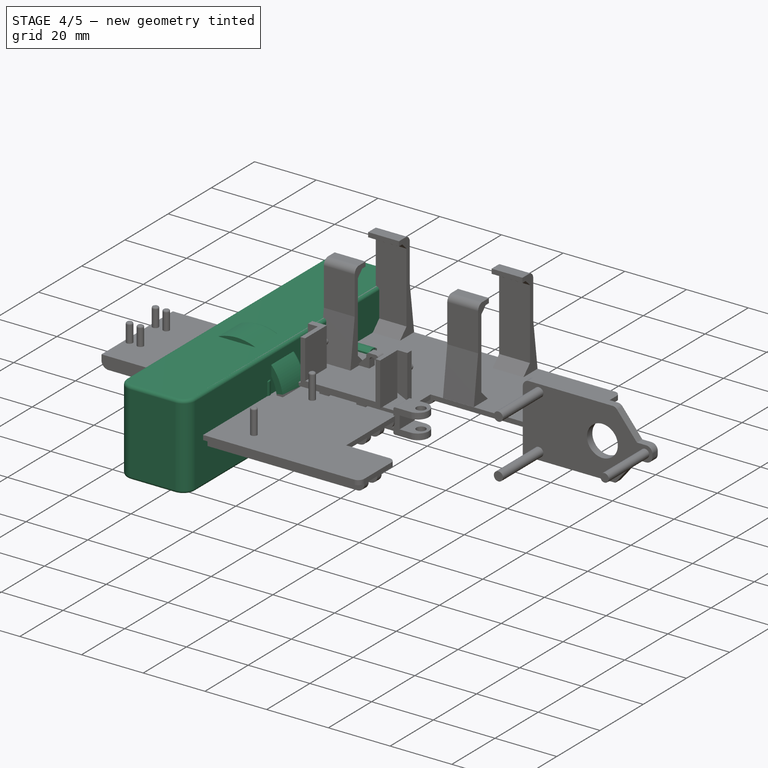
[diagram: stage 4 of 5 — iso view after this stage's code; geometry added in this stage tinted green]
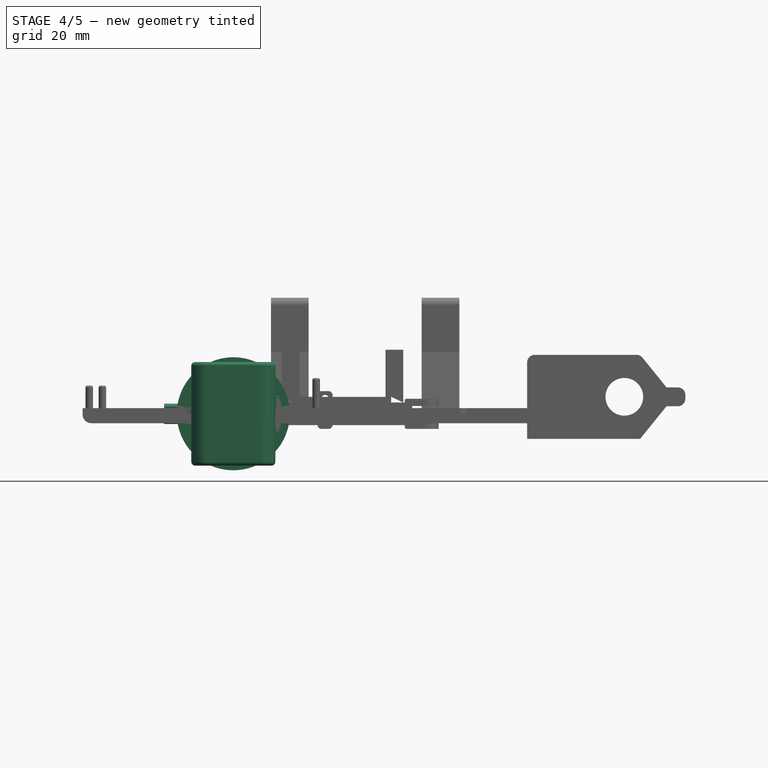
[diagram: stage 4 of 5 — front view after this stage's code; geometry added in this stage tinted green]
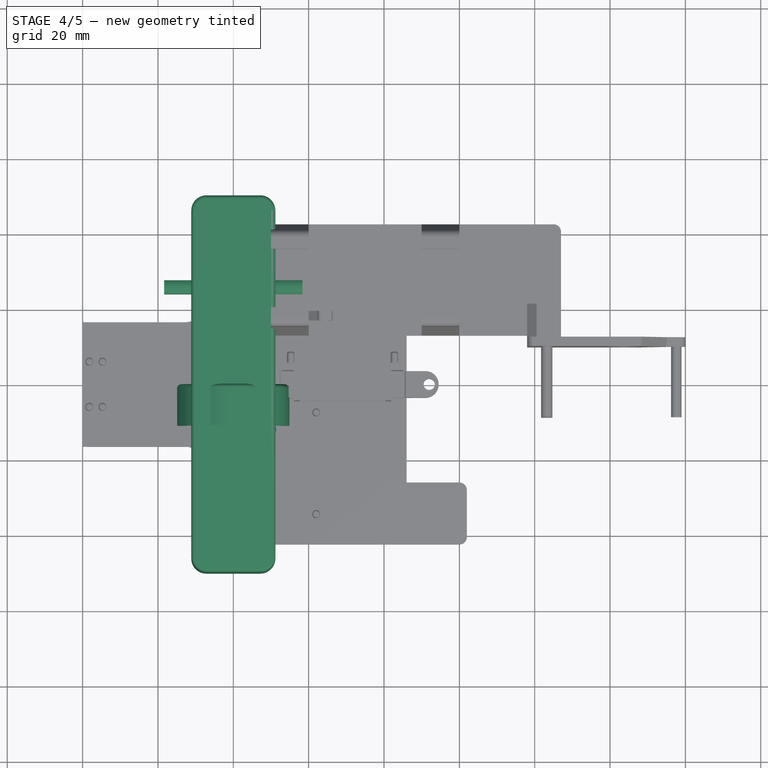
[diagram: stage 4 of 5 — top view after this stage's code; geometry added in this stage tinted green]
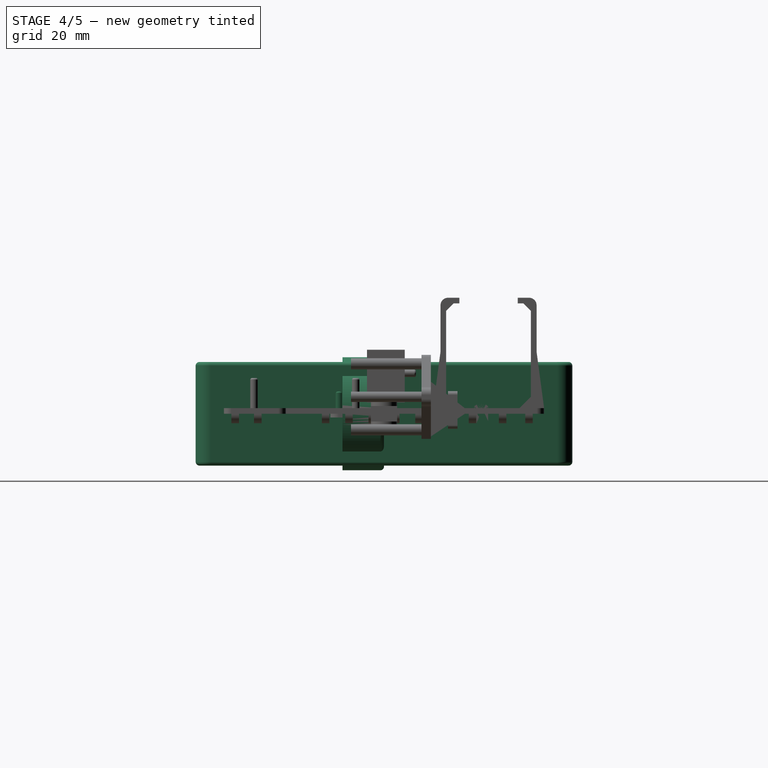
[diagram: stage 4 of 5 — right view after this stage's code; geometry added in this stage tinted green]
FEATURE [Sketcher::SketchObject] Sketch026
  FullyConstrained = true
  MapMode = 5
  Support = -> [XY_Plane002]
  sketch-geometry (4):
    g0: LineSegment StartX=0 StartY=3.5 StartZ=0 EndX=5 EndY=3.5 EndZ=0
    g1: LineSegment StartX=5 StartY=3.5 StartZ=0 EndX=5 EndY=10.5 EndZ=0
    g2: LineSegment StartX=5 StartY=10.5 StartZ=0 EndX=0 EndY=10.5 EndZ=0
    g3: LineSegment StartX=0 StartY=10.5 StartZ=0 EndX=0 EndY=3.5 EndZ=0
  constraints (12):
    c: Coincident(g0,g1)
    c: Coincident(g1,g2)
    c: Coincident(g2,g3)
    c: Coincident(g3,g0)
    c: Horizontal(g0)
    c: Horizontal(g2)
    c: Vertical(g1)
    c: Vertical(g3)
    c: PointOnObject(g0,g-2)
    c: DistanceY(g1,g1) = 7
    c: DistanceX(g2,g2) = 5
    c: DistanceY(g-1,g0) = 3.5
FEATURE [PartDesign::Pad] Pad015
  BaseFeature = -> Pad006
  Direction = (0,0,1)
  Length = 2
  Length2 = 10
  Midplane = true
  Profile = -> Sketch026
  ReferenceAxis = -> Sketch026 [N_Axis]
  Type = 0
FEATURE [Sketcher::SketchObject] Sketch057
  FullyConstrained = true
  MapMode = 5
  Placement = pos=(0,0,0) rot=(0.57735,0.57735,0.57735;2.0944rad)
  Support = -> [YZ_Plane013]
  sketch-geometry (6):
    g0: LineSegment StartX=0 StartY=11.15 StartZ=0 EndX=34 EndY=11.15 EndZ=0
    g1: LineSegment StartX=37 StartY=8.15 StartZ=0 EndX=37 EndY=-8.15 EndZ=0
    g2: LineSegment StartX=34 StartY=-11.15 StartZ=0 EndX=0 EndY=-11.15 EndZ=0
    g3: LineSegment StartX=0 StartY=-11.15 StartZ=0 EndX=0 EndY=11.15 EndZ=0
    g4: ArcOfCircle CenterX=34 CenterY=8.15 CenterZ=0 NormalX=0 NormalY=0 NormalZ=1 AngleXU=0 Radius=3 StartAngle=3.7e-14 EndAngle=1.5708
    g5: ArcOfCircle CenterX=34 CenterY=-8.15 CenterZ=0 NormalX=0 NormalY=0 NormalZ=1 AngleXU=0 Radius=3 StartAngle=4.71239 EndAngle=6.28319
  constraints (15):
    c: Coincident(g2,g3)
    c: Coincident(g3,g0)
    c: Horizontal(g0)
    c: Horizontal(g2)
    c: Vertical(g1)
    c: PointOnObject(g0,g-2)
    c: Symmetric(g2,g0,g-1)
    c: DistanceY(g3,g3) = 22.3
    c: Tangent(g0,g4) = 1.5708
    c: Tangent(g1,g4) = 1.5708
    c: Tangent(g2,g5) = 1.5708
    c: Tangent(g1,g5) = 1.5708
    c: Equal(g4,g5)
    c: DistanceX(g-1,g1) = 37
    c: Radius(g4) = 3
FEATURE [PartDesign::Pad] Pad034
  Direction = (1,-2e-16,3e-16)
  Length = 18.7
  Length2 = 10
  Midplane = true
  Placement = pos=(0,0,0) rot=(0.57735,0.57735,0.57735;2.0944rad)
  Profile = -> Sketch057
  ReferenceAxis = -> Sketch057 [N_Axis]
  Type = 0
FEATURE [Sketcher::SketchObject] Sketch058
  FullyConstrained = true
  MapMode = 5
  Placement = pos=(0,0,0) rot=(0.57735,0.57735,0.57735;2.0944rad)
  Support = -> [YZ_Plane013]
  sketch-geometry (5):
    g0: LineSegment StartX=37 StartY=2.5 StartZ=0 EndX=42 EndY=2.5 EndZ=0
    g1: LineSegment StartX=42 StartY=2.5 StartZ=0 EndX=42 EndY=-2.5 EndZ=0
    g2: LineSegment StartX=42 StartY=-2.5 StartZ=0 EndX=37 EndY=-2.5 EndZ=0
    g3: LineSegment StartX=37 StartY=-2.5 StartZ=0 EndX=37 EndY=2.5 EndZ=0
    g4: Circle CenterX=39.6 CenterY=0 CenterZ=0 NormalX=0 NormalY=0 NormalZ=1 AngleXU=0 Radius=1.4
  constraints (14):
    c: Coincident(g0,g1)
    c: Coincident(g1,g2)
    c: Coincident(g2,g3)
    c: Coincident(g3,g0)
    c: Horizontal(g0)
    c: Horizontal(g2)
    c: Vertical(g3)
    c: PointOnObject(g4,g-1)
    c: Symmetric(g1,g0,g-1)
    c: DistanceX(g0,g0) = 5
    c: Equal(g0,g1)
    c: DistanceX(g-1,g2) = 37
    c: Radius(g4) = 1.4
    c: DistanceX(g-1,g4) = 39.6
FEATURE [PartDesign::Pad] Pad035
  BaseFeature = -> Pad034
  Direction = (1,-2e-16,3e-16)
  Length = 2.7
  Length2 = 10
  Midplane = true
  Placement = pos=(0,0,0) rot=(0.57735,0.57735,0.57735;2.0944rad)
  Profile = -> Sketch058
  ReferenceAxis = -> Sketch058 [N_Axis]
  Type = 0
FEATURE [PartDesign::Fillet] Fillet023
  Base = -> Pad035 [Edge23]
  BaseFeature = -> Pad035
  Placement = pos=(0,0,0) rot=(0.57735,0.57735,0.57735;2.0944rad)
  Radius = 0.5
  SupportTransform = false
  UseAllEdges = false
FEATURE [PartDesign::Fillet] Fillet024
  Base = -> Fillet023 [Edge21]
  BaseFeature = -> Fillet023
  Placement = pos=(0,0,0) rot=(0.57735,0.57735,0.57735;2.0944rad)
  Radius = 0.5
  SupportTransform = false
  UseAllEdges = false
FEATURE [Sketcher::SketchObject] Sketch059
  FullyConstrained = true
  MapMode = 5
  Placement = pos=(9.35,-2.1e-15,2.1e-15) rot=(0.57735,0.57735,0.57735;2.0944rad)
  Support = -> [Fillet024]
  sketch-geometry (1):
    g0: Circle CenterX=25.8 CenterY=0 CenterZ=0 NormalX=0 NormalY=0 NormalZ=1 AngleXU=0 Radius=2.7
  constraints (3):
    c: PointOnObject(g0,g-1)
    c: Radius(g0) = 2.7
    c: DistanceX(g-1,g0) = 25.8
FEATURE [PartDesign::Pad] Pad036
  BaseFeature = -> Fillet024
  Direction = (1,-9e-16,6e-16)
  Length = 1
  Length2 = 10
  Placement = pos=(0,0,0) rot=(0.57735,0.57735,0.57735;2.0944rad)
  Profile = -> Sketch059
  ReferenceAxis = -> Sketch059 [N_Axis]
  Type = 0
FEATURE [Sketcher::SketchObject] Sketch060
  FullyConstrained = true
  MapMode = 5
  Placement = pos=(10.35,-6.8e-15,3.9e-15) rot=(0.57735,0.57735,0.57735;2.0944rad)
  Support = -> [Pad036]
  sketch-geometry (5):
    g0: ArcOfCircle CenterX=25.8 CenterY=0 CenterZ=0 NormalX=0 NormalY=0 NormalZ=1 AngleXU=0 Radius=2.7 StartAngle=3.95753 EndAngle=5.46725
    g1: LineSegment StartX=23.95 StartY=1.9666 StartZ=0 EndX=23.95 EndY=-1.9666 EndZ=0
    g2: LineSegment StartX=27.65 StartY=1.9666 StartZ=0 EndX=27.65 EndY=-1.9666 EndZ=0
    g3: ArcOfCircle CenterX=25.8 CenterY=0 CenterZ=0 NormalX=0 NormalY=0 NormalZ=1 AngleXU=0 Radius=2.7 StartAngle=0.815938 EndAngle=2.32565
    g4: Circle CenterX=25.8 CenterY=0 CenterZ=0 NormalX=0 NormalY=0 NormalZ=1 AngleXU=0 Radius=0.95
  constraints (15):
    c: PointOnObject(g0,g-1)
    c: Radius(g0) = 2.7
    c: Vertical(g1)
    c: Vertical(g2)
    c: Coincident(g3,g1)
    c: Coincident(g0,g1)
    c: Equal(g0,g3)
    c: Coincident(g0,g2)
    c: Coincident(g3,g2)
    c: Coincident(g0,g3)
    c: DistanceX(g-1,g0) = 25.8
    c: Equal(g2,g1)
    c: DistanceX(g1,g2) = 3.7
    c: Coincident(g4,g0)
    c: Radius(g4) = 0.95
FEATURE [PartDesign::Pad] Pad037
  BaseFeature = -> Pad036
  Direction = (1,-9e-16,4e-16)
  Length = 8
  Length2 = 10
  Placement = pos=(0,0,0) rot=(0.57735,0.57735,0.57735;2.0944rad)
  Profile = -> Sketch060
  ReferenceAxis = -> Sketch060 [N_Axis]
  Type = 0
FEATURE [Sketcher::SketchObject] Sketch061
  FullyConstrained = true
  MapMode = 5
  Placement = pos=(-9.35,2.1e-15,-2.1e-15) rot=(0.57735,0.57735,-0.57735;4.18879rad)
  Support = -> [Pad037]
  sketch-geometry (1):
    g0: Circle CenterX=25.8 CenterY=0 CenterZ=0 NormalX=0 NormalY=0 NormalZ=1 AngleXU=0 Radius=2.7
  constraints (3):
    c: PointOnObject(g0,g-1)
    c: Radius(g0) = 2.7
    c: DistanceX(g-1,g0) = 25.8
FEATURE [PartDesign::Pad] Pad038
  BaseFeature = -> Pad037
  Direction = (-1,9e-16,-8e-16)
  Length = 1
  Length2 = 10
  Placement = pos=(0,0,0) rot=(0.57735,0.57735,0.57735;2.0944rad)
  Profile = -> Sketch061
  ReferenceAxis = -> Sketch061 [N_Axis]
  Type = 0
FEATURE [Sketcher::SketchObject] Sketch062
  FullyConstrained = true
  MapMode = 5
  Placement = pos=(-10.35,4.6e-15,-7.9e-15) rot=(0.57735,0.57735,-0.57735;4.18879rad)
  Support = -> [Pad038]
  sketch-geometry (4):
    g0: ArcOfCircle CenterX=25.8 CenterY=0 CenterZ=0 NormalX=0 NormalY=0 NormalZ=1 AngleXU=0 Radius=2.7 StartAngle=3.95753 EndAngle=5.46725
    g1: LineSegment StartX=23.95 StartY=1.9666 StartZ=0 EndX=23.95 EndY=-1.9666 EndZ=0
    g2: LineSegment StartX=27.65 StartY=1.9666 StartZ=0 EndX=27.65 EndY=-1.9666 EndZ=0
    g3: ArcOfCircle CenterX=25.8 CenterY=0 CenterZ=0 NormalX=0 NormalY=0 NormalZ=1 AngleXU=0 Radius=2.7 StartAngle=0.815938 EndAngle=2.32565
  constraints (13):
    c: PointOnObject(g0,g-1)
    c: DistanceX(g-1,g0) = 25.8
    c: Radius(g0) = 2.7
    c: Vertical(g1)
    c: Vertical(g2)
    c: Coincident(g3,g1)
    c: Coincident(g0,g1)
    c: Equal(g0,g3)
    c: Coincident(g0,g2)
    c: Coincident(g3,g2)
    c: Coincident(g0,g3)
    c: DistanceX(g1,g2) = 3.7
    c: Equal(g1,g2)
FEATURE [PartDesign::Pad] Pad039
  BaseFeature = -> Pad038
  Direction = (-1,6e-16,-8e-16)
  Length = 8
  Length2 = 10
  Placement = pos=(0,0,0) rot=(0.57735,0.57735,0.57735;2.0944rad)
  Profile = -> Sketch062
  ReferenceAxis = -> Sketch062 [N_Axis]
  Type = 0
FEATURE [Sketcher::SketchObject] Sketch063
  FullyConstrained = true
  MapMode = 5
  Placement = pos=(9.35,-2.1e-15,2.1e-15) rot=(0.57735,0.57735,0.57735;2.0944rad)
  Support = -> [Pad039]
  sketch-geometry (2):
    g0: Circle CenterX=5.2 CenterY=8.75 CenterZ=0 NormalX=0 NormalY=0 NormalZ=1 AngleXU=0 Radius=1.5
    g1: Circle CenterX=5.2 CenterY=-8.75 CenterZ=0 NormalX=0 NormalY=0 NormalZ=1 AngleXU=0 Radius=1.5
  constraints (5):
    c: Equal(g0,g1)
    c: Radius(g0) = 1.5
    c: Symmetric(g0,g1,g-1)
    c: DistanceX(g-1,g1) = 5.2
    c: DistanceY(g1,g0) = 17.5
FEATURE [PartDesign::Pocket] Pocket023
  BaseFeature = -> Pad039
  Direction = (-1,1.8e-15,-1e-15)
  Length = 5
  Length2 = 5
  Placement = pos=(0,0,0) rot=(0.57735,0.57735,0.57735;2.0944rad)
  Profile = -> Sketch063
  ReferenceAxis = -> Sketch063 [N_Axis]
  Type = 1
FEATURE [Sketcher::SketchObject] Sketch074
  FullyConstrained = true
  MapMode = 5
  Placement = pos=(0,0,0) rot=(0.57735,0.57735,0.57735;2.0944rad)
  Support = -> [YZ_Plane016]
  sketch-geometry (4):
    g0: LineSegment StartX=-50 StartY=13.75 StartZ=0 EndX=50 EndY=13.75 EndZ=0
    g1: LineSegment StartX=50 StartY=13.75 StartZ=0 EndX=50 EndY=-13.75 EndZ=0
    g2: LineSegment StartX=50 StartY=-13.75 StartZ=0 EndX=-50 EndY=-13.75 EndZ=0
    g3: LineSegment StartX=-50 StartY=-13.75 StartZ=0 EndX=-50 EndY=13.75 EndZ=0
  constraints (10):
    c: Coincident(g0,g1)
    c: Coincident(g1,g2)
    c: Coincident(g2,g3)
    c: Coincident(g3,g0)
    c: Horizontal(g2)
    c: Vertical(g3)
    c: Symmetric(g0,g1,g-1)
    c: Symmetric(g0,g0,g-2)
    c: DistanceX(g0,g0) = 100
    c: DistanceY(g1,g1) = 27.5
FEATURE [PartDesign::Pad] Pad047
  Direction = (1,-2e-16,3e-16)
  Length = 22.3
  Length2 = 10
  Midplane = true
  Placement = pos=(0,0,0) rot=(0.57735,0.57735,0.57735;2.0944rad)
  Profile = -> Sketch074
  ReferenceAxis = -> Sketch074 [N_Axis]
  Type = 0
FEATURE [PartDesign::Fillet] Fillet029
  Base = -> Pad047 [Edge11,Edge12,Edge7,Edge6]
  BaseFeature = -> Pad047
  Placement = pos=(0,0,0) rot=(0.57735,0.57735,0.57735;2.0944rad)
  Radius = 4
  SupportTransform = false
  UseAllEdges = false
FEATURE [PartDesign::Fillet] Fillet030
  Base = -> Fillet029 [Edge9,Edge1,Edge24,Edge8]
  BaseFeature = -> Fillet029
  Placement = pos=(0,0,0) rot=(0.57735,0.57735,0.57735;2.0944rad)
  Radius = 1
  SupportTransform = false
  UseAllEdges = false
FEATURE [Sketcher::SketchObject] Sketch080
  FullyConstrained = true
  MapMode = 5
  Placement = pos=(0,0,0) rot=(1,0,0;1.5708rad)
  Support = -> [XZ_Plane018]
  sketch-geometry (1):
    g0: Circle CenterX=0 CenterY=0 CenterZ=0 NormalX=0 NormalY=0 NormalZ=1 AngleXU=0 Radius=15
  constraints (2):
    c: Coincident(g0,g-1)
    c: Radius(g0) = 15
FEATURE [PartDesign::Pad] Pad053
  Direction = (0,-1,2e-16)
  Length = 11
  Length2 = 10
  Placement = pos=(0,0,0) rot=(1,0,0;1.5708rad)
  Profile = -> Sketch080
  ReferenceAxis = -> Sketch080 [N_Axis]
  Type = 0
FEATURE [PartDesign::Thickness] Thickness001
  Base = -> Pad053 [Face3]
  BaseFeature = -> Pad053
  Intersection = false
  Join = 0
  Mode = 0
  Reversed = true
  SupportTransform = false
  Value = 2
FEATURE [PartDesign::Fillet] Fillet031
  Base = -> Thickness001 [Edge2]
  BaseFeature = -> Thickness001
  Radius = 1
  SupportTransform = false
  UseAllEdges = false
FEATURE [Sketcher::SketchObject] Sketch081
  FullyConstrained = true
  MapMode = 5
  Placement = pos=(0,0,0) rot=(0,0.707107,0.707107;3.14159rad)
  Support = -> [Fillet031]
  sketch-geometry (1):
    g0: Circle CenterX=0 CenterY=0 CenterZ=0 NormalX=0 NormalY=0 NormalZ=1 AngleXU=0 Radius=2.45
  constraints (2):
    c: Coincident(g0,g-1)
    c: Radius(g0) = 2.45
FEATURE [PartDesign::Pad] Pad054
  BaseFeature = -> Fillet031
  Direction = (0,1,-2e-16)
  Length = 12.3
  Length2 = 10
  Profile = -> Sketch081
  ReferenceAxis = -> Sketch081 [N_Axis]
  Reversed = true
  Type = 0
FEATURE [Sketcher::SketchObject] Sketch082
  FullyConstrained = true
  MapMode = 5
  Placement = pos=(0,-12.3,2.7e-15) rot=(1,0,0;1.5708rad)
  Support = -> [Pad054]
  sketch-geometry (1):
    g0: Circle CenterX=0 CenterY=0 CenterZ=0 NormalX=0 NormalY=0 NormalZ=1 AngleXU=0 Radius=1
  constraints (2):
    c: Coincident(g0,g-1)
    c: Radius(g0) = 1
FEATURE [PartDesign::Pocket] Pocket025
  BaseFeature = -> Pad054
  Direction = (0,1,-2e-16)
  Length = 7.3
  Length2 = 5
  Profile = -> Sketch082
  ReferenceAxis = -> Sketch082 [N_Axis]
  Type = 0
FEATURE [Sketcher::SketchObject] Sketch083
  FullyConstrained = true
  MapMode = 5
  Placement = pos=(0,0,0) rot=(0,0.707107,0.707107;3.14159rad)
  Support = -> [Pocket025]
  sketch-geometry (10):
    g0: Circle CenterX=0 CenterY=0 CenterZ=0 NormalX=0 NormalY=0 NormalZ=1 AngleXU=0 Radius=8
    g1: Circle CenterX=-2.47214 CenterY=7.60845 CenterZ=0 NormalX=0 NormalY=0 NormalZ=1 AngleXU=0 Radius=3
    g2: Circle CenterX=6.47214 CenterY=4.70228 CenterZ=0 NormalX=0 NormalY=0 NormalZ=1 AngleXU=0 Radius=3
    g3: Circle CenterX=6.47214 CenterY=-4.70228 CenterZ=0 NormalX=0 NormalY=0 NormalZ=1 AngleXU=0 Radius=3
    g4: Circle CenterX=-2.47214 CenterY=-7.60845 CenterZ=0 NormalX=0 NormalY=0 NormalZ=1 AngleXU=0 Radius=3
    g5: Circle CenterX=-8 CenterY=0 CenterZ=0 NormalX=0 NormalY=0 NormalZ=1 AngleXU=0 Radius=3
    g6: LineSegment StartX=0 StartY=0 StartZ=0 EndX=6.47214 EndY=4.70228 EndZ=0
    g7: LineSegment StartX=0 StartY=0 StartZ=0 EndX=6.47214 EndY=-4.70228 EndZ=0
    g8: LineSegment StartX=0 StartY=0 StartZ=0 EndX=-2.47214 EndY=-7.60845 EndZ=0
    g9: LineSegment StartX=0 StartY=0 StartZ=0 EndX=-2.47214 EndY=7.60845 EndZ=0
  constraints (25):
    c: Coincident(g0,g-1)
    c: Radius(g0) = 8
    c: PointOnObject(g1,g0)
    c: Radius(g1) = 3
    c: PointOnObject(g2,g0)
    c: PointOnObject(g3,g0)
    c: PointOnObject(g4,g0)
    c: PointOnObject(g5,g0)
    c: Equal(g5,g4)
    c: Equal(g4,g3)
    c: Equal(g3,g2)
    c: Equal(g2,g1)
    c: PointOnObject(g5,g-1)
    c: Coincident(g6,g0)
    c: Coincident(g6,g2)
    c: Coincident(g7,g0)
    c: Coincident(g7,g3)
    c: Coincident(g8,g0)
    c: Coincident(g8,g4)
    c: Coincident(g9,g0)
    c: Coincident(g9,g1)
    c: Angle(g7,g6) = 1.25664
    c: Angle(g8,g7) = 1.25664
    c: Angle(g6,g9) = 1.25664
    c: Angle(g-1,g6) = 0.628319
FEATURE [PartDesign::Pocket] Pocket026
  BaseFeature = -> Pocket025
  Direction = (0,-1,2e-16)
  Length = 5
  Length2 = 5
  Profile = -> Sketch083
  ReferenceAxis = -> Sketch083 [N_Axis]
  Type = 0
FEATURE [Sketcher::SketchObject] Sketch098
  FullyConstrained = true
  MapMode = 5
  Placement = pos=(0,0,1) rot=(0,0,1;0rad)
  Support = -> [Pad015]
  sketch-geometry (1):
    g0: Circle CenterX=10 CenterY=-12 CenterZ=0 NormalX=0 NormalY=0 NormalZ=1 AngleXU=0 Radius=1.4
  constraints (3):
    c: DistanceX(g-1,g0) = 10
    c: DistanceY(g0,g-1) = 12
    c: Radius(g0) = 1.4
FEATURE [PartDesign::Pad] Pad068
  BaseFeature = -> Pad015
  Direction = (0,0,1)
  Length = 5
  Length2 = 10
  Profile = -> Sketch098
  ReferenceAxis = -> Sketch098 [N_Axis]
  Type = 0
FEATURE [PartDesign::Fillet] Fillet037
  Base = -> Pad068 [Edge81]
  BaseFeature = -> Pad068
  Radius = 0.5
  SupportTransform = false
  UseAllEdges = false
FEATURE [Sketcher::SketchObject] Sketch099
  FullyConstrained = true
  MapMode = 5
  Placement = pos=(0,0,1) rot=(0,0,1;0rad)
  Support = -> [Fillet037]
  sketch-geometry (1):
    g0: Circle CenterX=2.5 CenterY=9 CenterZ=0 NormalX=0 NormalY=0 NormalZ=1 AngleXU=0 Radius=1.4
  constraints (3):
    c: Radius(g0) = 1.4
    c: DistanceX(g-1,g0) = 2.5
    c: DistanceY(g-1,g0) = 9
FEATURE [PartDesign::Pad] Pad069
  BaseFeature = -> Fillet037
  Direction = (0,0,1)
  Length = 5
  Length2 = 10
  Profile = -> Sketch099
  ReferenceAxis = -> Sketch099 [N_Axis]
  Type = 0
FEATURE [PartDesign::Fillet] Fillet038
  Base = -> Pad069 [Edge107]
  BaseFeature = -> Pad069
  Radius = 0.5
  SupportTransform = false
  UseAllEdges = false
FEATURE [PartDesign::Fillet] Fillet039
  Base = -> Fillet038 [Edge14,Edge20]
  BaseFeature = -> Fillet038
  Radius = 1
  SupportTransform = false
  UseAllEdges = false
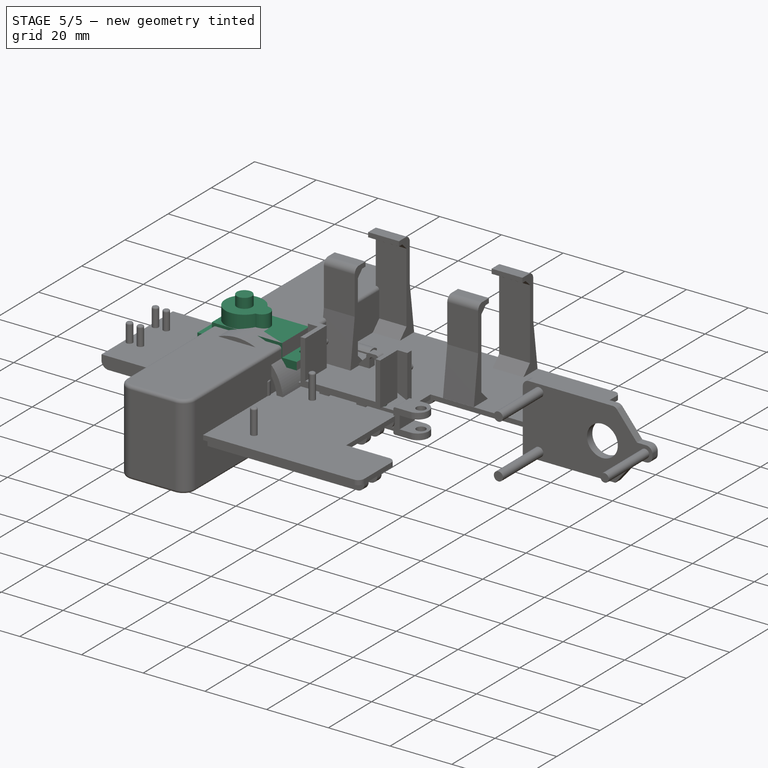
[diagram: stage 5 of 5 — iso view after this stage's code; geometry added in this stage tinted green]
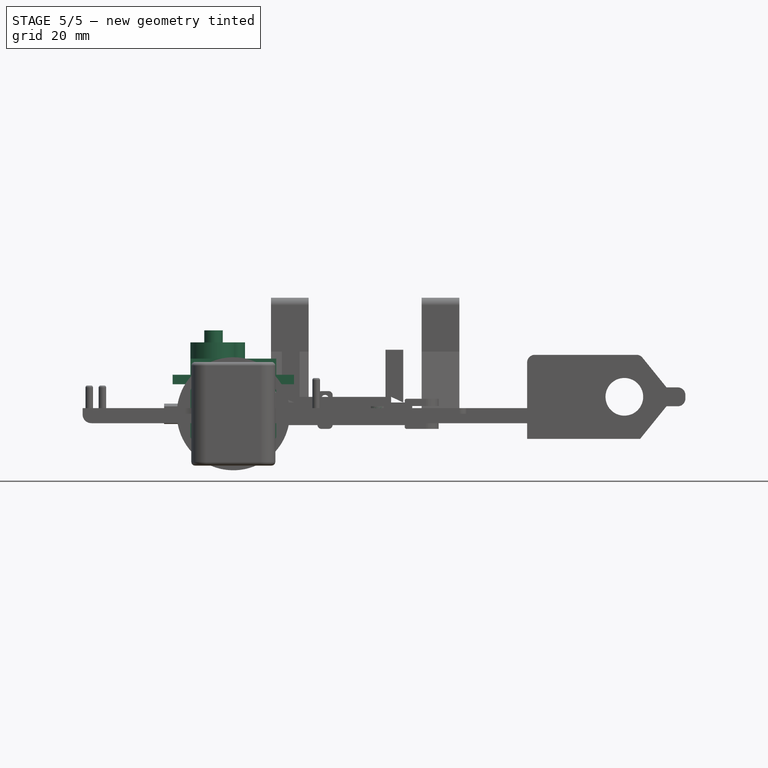
[diagram: stage 5 of 5 — front view after this stage's code; geometry added in this stage tinted green]
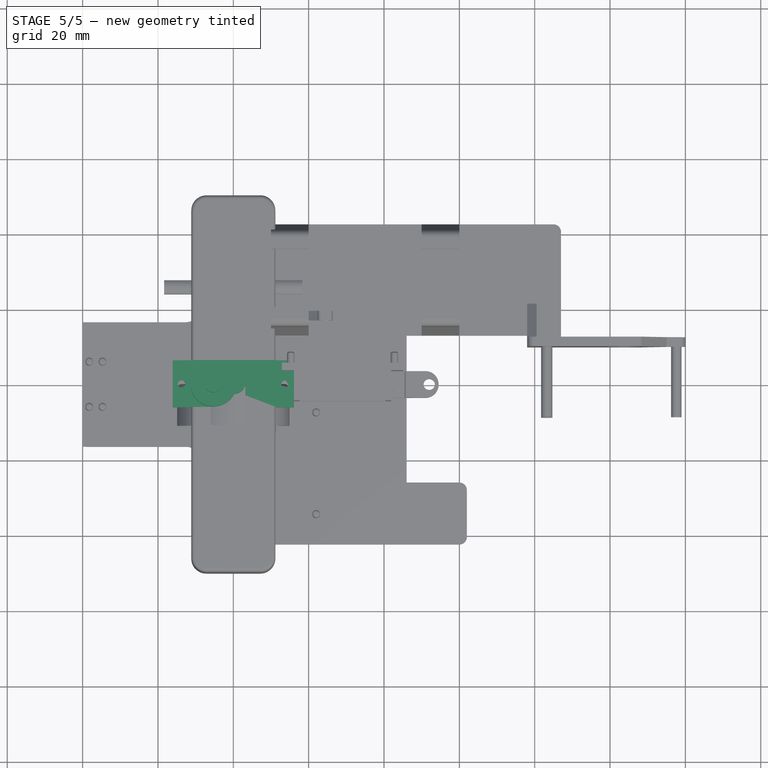
[diagram: stage 5 of 5 — top view after this stage's code; geometry added in this stage tinted green]
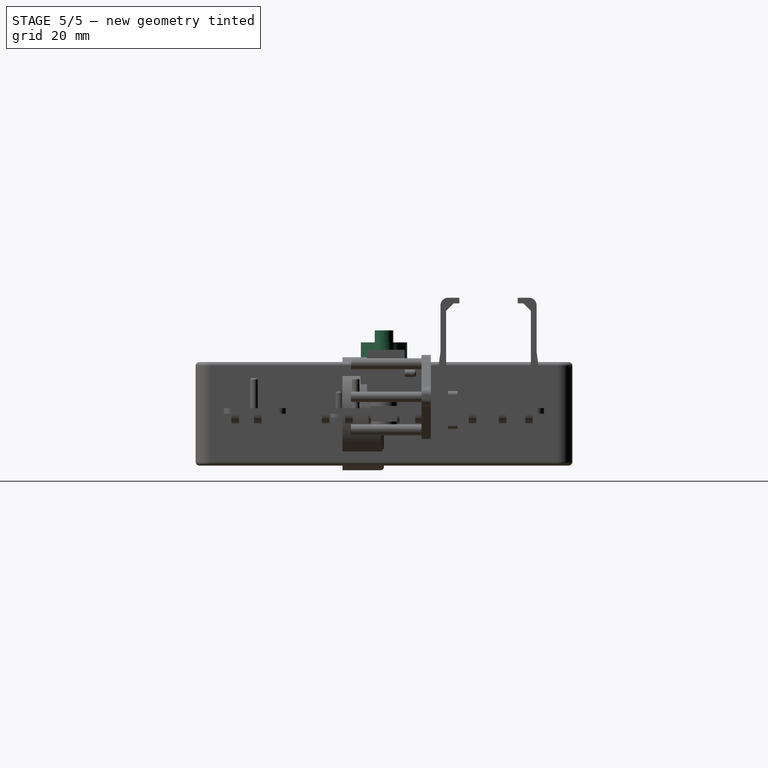
[diagram: stage 5 of 5 — right view after this stage's code; geometry added in this stage tinted green]
FEATURE [Sketcher::SketchObject] Sketch
  FullyConstrained = false
  MapMode = 5
  Support = -> [XY_Plane]
  sketch-geometry (1):
    g0: Circle CenterX=0 CenterY=0 CenterZ=0 NormalX=0 NormalY=0 NormalZ=1 AngleXU=0 Radius=2.5
  constraints (1):
    c: Radius(g0) = 2.5
FEATURE [PartDesign::Pad] Pad
  Direction = (0,0,1)
  Length = 1.7
  Length2 = 10
  Profile = -> Sketch
  ReferenceAxis = -> Sketch [N_Axis]
  Type = 0
FEATURE [Sketcher::SketchObject] Sketch001
  FullyConstrained = true
  MapMode = 5
  Placement = pos=(0,0,1.7) rot=(0,0,1;0rad)
  Support = -> [Pad]
  sketch-geometry (1):
    g0: Circle CenterX=0 CenterY=0 CenterZ=0 NormalX=0 NormalY=0 NormalZ=1 AngleXU=0 Radius=1
  constraints (2):
    c: Coincident(g0,g-1)
    c: Radius(g0) = 1
FEATURE [PartDesign::Pocket] Pocket
  BaseFeature = -> Pad
  Direction = (0,0,-1)
  Length = 5
  Length2 = 5
  Profile = -> Sketch001
  ReferenceAxis = -> Sketch001 [N_Axis]
  Type = 1
FEATURE [Sketcher::SketchObject] Sketch002
  FullyConstrained = true
  MapMode = 5
  Placement = pos=(0,0,1.7) rot=(0,0,1;0rad)
  Support = -> [Pocket]
  sketch-geometry (1):
    g0: Circle CenterX=0 CenterY=0 CenterZ=0 NormalX=0 NormalY=0 NormalZ=1 AngleXU=0 Radius=3.05
  constraints (2):
    c: Coincident(g0,g-1)
    c: Radius(g0) = 3.05
FEATURE [PartDesign::Pad] Pad001
  BaseFeature = -> Pocket
  Direction = (0,0,1)
  Length = 0.6
  Length2 = 10
  Profile = -> Sketch002
  ReferenceAxis = -> Sketch002 [N_Axis]
  Type = 0
FEATURE [Sketcher::SketchObject] Sketch003
  FullyConstrained = true
  MapMode = 5
  Placement = pos=(0,0,2.3) rot=(0,0,1;0rad)
  Support = -> [Pad001]
  sketch-geometry (1):
    g0: Circle CenterX=0 CenterY=0 CenterZ=0 NormalX=0 NormalY=0 NormalZ=1 AngleXU=0 Radius=1
  constraints (2):
    c: Coincident(g0,g-1)
    c: Radius(g0) = 1
FEATURE [PartDesign::Pocket] Pocket001
  BaseFeature = -> Pad001
  Direction = (0,0,-1)
  Length = 5
  Length2 = 5
  Profile = -> Sketch003
  ReferenceAxis = -> Sketch003 [N_Axis]
  Type = 1
FEATURE [PartDesign::Body] Body  label="bearing-ref"
  Group = -> [Sketch,Pad,Sketch001,Pocket,Sketch002,Pad001,Sketch003,Pocket001]
  Origin = -> Origin
  Placement = pos=(1.7,0,0) rot=(0,-1,0;1.5708rad)
  Tip = -> Pocket001
FEATURE [Sketcher::SketchObject] Sketch004
  FullyConstrained = true
  MapMode = 5
  Placement = pos=(0,0,0) rot=(1,0,0;1.5708rad)
  Support = -> [XZ_Plane001]
  sketch-geometry (1):
    g0: Circle CenterX=0 CenterY=0 CenterZ=0 NormalX=0 NormalY=0 NormalZ=1 AngleXU=0 Radius=15
  constraints (2):
    c: Coincident(g0,g-1)
    c: Radius(g0) = 15
FEATURE [PartDesign::Pad] Pad002
  Direction = (0,-1,2e-16)
  Length = 11
  Length2 = 10
  Placement = pos=(0,0,0) rot=(1,0,0;1.5708rad)
  Profile = -> Sketch004
  ReferenceAxis = -> Sketch004 [N_Axis]
  Type = 0
FEATURE [PartDesign::Thickness] Thickness
  Base = -> Pad002 [Face3]
  BaseFeature = -> Pad002
  Intersection = false
  Join = 0
  Mode = 0
  Reversed = true
  SupportTransform = false
  Value = 2
FEATURE [PartDesign::Fillet] Fillet
  Base = -> Thickness [Edge2]
  BaseFeature = -> Thickness
  Radius = 1
  SupportTransform = false
  UseAllEdges = false
FEATURE [Sketcher::SketchObject] Sketch005
  FullyConstrained = true
  MapMode = 5
  Placement = pos=(0,0,0) rot=(0,0.707107,0.707107;3.14159rad)
  Support = -> [Fillet]
  sketch-geometry (1):
    g0: Circle CenterX=0 CenterY=0 CenterZ=0 NormalX=0 NormalY=0 NormalZ=1 AngleXU=0 Radius=2.45
  constraints (2):
    c: Coincident(g0,g-1)
    c: Radius(g0) = 2.45
FEATURE [PartDesign::Pad] Pad003
  BaseFeature = -> Fillet
  Direction = (0,1,-2e-16)
  Length = 12.3
  Length2 = 10
  Profile = -> Sketch005
  ReferenceAxis = -> Sketch005 [N_Axis]
  Reversed = true
  Type = 0
FEATURE [Sketcher::SketchObject] Sketch006
  FullyConstrained = true
  MapMode = 5
  Placement = pos=(0,-12.3,2.7e-15) rot=(1,0,0;1.5708rad)
  Support = -> [Pad003]
  sketch-geometry (1):
    g0: Circle CenterX=0 CenterY=0 CenterZ=0 NormalX=0 NormalY=0 NormalZ=1 AngleXU=0 Radius=1
  constraints (2):
    c: Coincident(g0,g-1)
    c: Radius(g0) = 1
FEATURE [PartDesign::Pocket] Pocket002
  BaseFeature = -> Pad003
  Direction = (0,1,-2e-16)
  Length = 7.3
  Length2 = 5
  Profile = -> Sketch006
  ReferenceAxis = -> Sketch006 [N_Axis]
  Type = 0
FEATURE [Sketcher::SketchObject] Sketch007
  FullyConstrained = true
  MapMode = 5
  Placement = pos=(0,0,0) rot=(0,0.707107,0.707107;3.14159rad)
  Support = -> [Pocket002]
  sketch-geometry (10):
    g0: Circle CenterX=0 CenterY=0 CenterZ=0 NormalX=0 NormalY=0 NormalZ=1 AngleXU=0 Radius=8
    g1: Circle CenterX=-2.47214 CenterY=7.60845 CenterZ=0 NormalX=0 NormalY=0 NormalZ=1 AngleXU=0 Radius=3
    g2: Circle CenterX=6.47214 CenterY=4.70228 CenterZ=0 NormalX=0 NormalY=0 NormalZ=1 AngleXU=0 Radius=3
    g3: Circle CenterX=6.47214 CenterY=-4.70228 CenterZ=0 NormalX=0 NormalY=0 NormalZ=1 AngleXU=0 Radius=3
    g4: Circle CenterX=-2.47214 CenterY=-7.60845 CenterZ=0 NormalX=0 NormalY=0 NormalZ=1 AngleXU=0 Radius=3
    g5: Circle CenterX=-8 CenterY=0 CenterZ=0 NormalX=0 NormalY=0 NormalZ=1 AngleXU=0 Radius=3
    g6: LineSegment StartX=0 StartY=0 StartZ=0 EndX=6.47214 EndY=4.70228 EndZ=0
    g7: LineSegment StartX=0 StartY=0 StartZ=0 EndX=6.47214 EndY=-4.70228 EndZ=0
    g8: LineSegment StartX=0 StartY=0 StartZ=0 EndX=-2.47214 EndY=-7.60845 EndZ=0
    g9: LineSegment StartX=0 StartY=0 StartZ=0 EndX=-2.47214 EndY=7.60845 EndZ=0
  constraints (25):
    c: Coincident(g0,g-1)
    c: Radius(g0) = 8
    c: PointOnObject(g1,g0)
    c: Radius(g1) = 3
    c: PointOnObject(g2,g0)
    c: PointOnObject(g3,g0)
    c: PointOnObject(g4,g0)
    c: PointOnObject(g5,g0)
    c: Equal(g5,g4)
    c: Equal(g4,g3)
    c: Equal(g3,g2)
    c: Equal(g2,g1)
    c: PointOnObject(g5,g-1)
    c: Coincident(g6,g0)
    c: Coincident(g6,g2)
    c: Coincident(g7,g0)
    c: Coincident(g7,g3)
    c: Coincident(g8,g0)
    c: Coincident(g8,g4)
    c: Coincident(g9,g0)
    c: Coincident(g9,g1)
    c: Angle(g7,g6) = 1.25664
    c: Angle(g8,g7) = 1.25664
    c: Angle(g6,g9) = 1.25664
    c: Angle(g-1,g6) = 0.628319
FEATURE [PartDesign::Pocket] Pocket003
  BaseFeature = -> Pocket002
  Direction = (0,-1,2e-16)
  Length = 5
  Length2 = 5
  Profile = -> Sketch007
  ReferenceAxis = -> Sketch007 [N_Axis]
  Type = 0
FEATURE [Sketcher::SketchObject] Sketch015
  FullyConstrained = true
  MapMode = 5
  Placement = pos=(0,0,0) rot=(1,0,0;1.5708rad)
  Support = -> [XZ_Plane004]
  sketch-geometry (4):
    g0: LineSegment StartX=-11.4 StartY=7.85 StartZ=0 EndX=11.4 EndY=7.85 EndZ=0
    g1: LineSegment StartX=11.4 StartY=7.85 StartZ=0 EndX=11.4 EndY=-7.85 EndZ=0
    g2: LineSegment StartX=11.4 StartY=-7.85 StartZ=0 EndX=-11.4 EndY=-7.85 EndZ=0
    g3: LineSegment StartX=-11.4 StartY=-7.85 StartZ=0 EndX=-11.4 EndY=7.85 EndZ=0
  constraints (10):
    c: Coincident(g0,g1)
    c: Coincident(g1,g2)
    c: Coincident(g2,g3)
    c: Coincident(g3,g0)
    c: Horizontal(g2)
    c: Vertical(g3)
    c: Symmetric(g0,g1,g-1)
    c: Symmetric(g0,g0,g-2)
    c: DistanceX(g2,g2) = 22.8
    c: DistanceY(g1,g1) = 15.7
FEATURE [PartDesign::Pad] Pad008
  Direction = (0,-1,-2e-16)
  Length = 12.5
  Length2 = 10
  Midplane = true
  Placement = pos=(0,0,0) rot=(1,0,0;1.5708rad)
  Profile = -> Sketch015
  ReferenceAxis = -> Sketch015 [N_Axis]
  Type = 0
FEATURE [Sketcher::SketchObject] Sketch016
  FullyConstrained = true
  MapMode = 5
  Placement = pos=(0,0,0) rot=(1,0,0;1.5708rad)
  Support = -> [XZ_Plane004]
  sketch-geometry (4):
    g0: LineSegment StartX=-16.1 StartY=10.35 StartZ=0 EndX=16.1 EndY=10.35 EndZ=0
    g1: LineSegment StartX=16.1 StartY=10.35 StartZ=0 EndX=16.1 EndY=7.85 EndZ=0
    g2: LineSegment StartX=16.1 StartY=7.85 StartZ=0 EndX=-16.1 EndY=7.85 EndZ=0
    g3: LineSegment StartX=-16.1 StartY=7.85 StartZ=0 EndX=-16.1 EndY=10.35 EndZ=0
  constraints (11):
    c: Coincident(g0,g1)
    c: Coincident(g1,g2)
    c: Coincident(g2,g3)
    c: Coincident(g3,g0)
    c: Horizontal(g2)
    c: Vertical(g1)
    c: Vertical(g3)
    c: DistanceY(g1,g1) = 2.5
    c: DistanceX(g0,g0) = 32.2
    c: DistanceY(g-1,g2) = 7.85
    c: Symmetric(g0,g0,g-2)
FEATURE [PartDesign::Pad] Pad009
  BaseFeature = -> Pad008
  Direction = (0,-1,-2e-16)
  Length = 12.5
  Length2 = 10
  Midplane = true
  Placement = pos=(0,0,0) rot=(1,0,0;1.5708rad)
  Profile = -> Sketch016
  ReferenceAxis = -> Sketch016 [N_Axis]
  Type = 0
FEATURE [Sketcher::SketchObject] Sketch017
  FullyConstrained = true
  MapMode = 5
  Placement = pos=(0,-6.25,0) rot=(1,0,0;1.5708rad)
  Support = -> [Pad009]
  sketch-geometry (4):
    g0: LineSegment StartX=-11.4 StartY=14.65 StartZ=0 EndX=11.4 EndY=14.65 EndZ=0
    g1: LineSegment StartX=11.4 StartY=14.65 StartZ=0 EndX=11.4 EndY=10.35 EndZ=0
    g2: LineSegment StartX=11.4 StartY=10.35 StartZ=0 EndX=-11.4 EndY=10.35 EndZ=0
    g3: LineSegment StartX=-11.4 StartY=10.35 StartZ=0 EndX=-11.4 EndY=14.65 EndZ=0
  constraints (11):
    c: Coincident(g0,g1)
    c: Coincident(g1,g2)
    c: Coincident(g2,g3)
    c: Coincident(g3,g0)
    c: Horizontal(g2)
    c: Vertical(g1)
    c: Vertical(g3)
    c: Symmetric(g0,g0,g-2)
    c: DistanceY(g1,g1) = 4.3
    c: DistanceX(g0,g0) = 22.8
    c: DistanceY(g-1,g2) = 10.35
FEATURE [PartDesign::Pad] Pad010
  BaseFeature = -> Pad009
  Direction = (0,-1,-2e-16)
  Length = 12.5
  Length2 = 10
  Placement = pos=(0,0,0) rot=(1,0,0;1.5708rad)
  Profile = -> Sketch017
  ReferenceAxis = -> Sketch017 [N_Axis]
  Reversed = true
  Type = 0
FEATURE [Sketcher::SketchObject] Sketch018
  FullyConstrained = true
  MapMode = 5
  Placement = pos=(0,2.3e-15,10.35) rot=(0,0,1;3.14159rad)
  Support = -> [Pad010]
  sketch-geometry (2):
    g0: Circle CenterX=-13.75 CenterY=0 CenterZ=0 NormalX=0 NormalY=0 NormalZ=1 AngleXU=0 Radius=1
    g1: Circle CenterX=13.75 CenterY=0 CenterZ=0 NormalX=0 NormalY=0 NormalZ=1 AngleXU=0 Radius=1
  constraints (5):
    c: PointOnObject(g0,g-1)
    c: Equal(g0,g1)
    c: Radius(g1) = 1
    c: Symmetric(g1,g0,g-2)
    c: DistanceX(g0,g1) = 27.5
FEATURE [PartDesign::Pocket] Pocket007
  BaseFeature = -> Pad010
  Direction = (0,2e-16,-1)
  Length = 5
  Length2 = 5
  Placement = pos=(0,0,0) rot=(1,0,0;1.5708rad)
  Profile = -> Sketch018
  ReferenceAxis = -> Sketch018 [N_Axis]
  Type = 1
FEATURE [Sketcher::SketchObject] Sketch019
  FullyConstrained = true
  MapMode = 5
  Placement = pos=(0,3.3e-15,14.65) rot=(0,0,1;3.14159rad)
  Support = -> [Pocket007]
  sketch-geometry (1):
    g0: Circle CenterX=5.25 CenterY=0 CenterZ=0 NormalX=0 NormalY=0 NormalZ=1 AngleXU=0 Radius=6.15
  constraints (3):
    c: PointOnObject(g0,g-1)
    c: Radius(g0) = 6.15
    c: DistanceX(g-1,g0) = 5.25
FEATURE [PartDesign::Pad] Pad011
  BaseFeature = -> Pocket007
  Direction = (0,-2e-16,1)
  Length = 4.3
  Length2 = 10
  Placement = pos=(0,0,0) rot=(1,0,0;1.5708rad)
  Profile = -> Sketch019
  ReferenceAxis = -> Sketch019 [N_Axis]
  Type = 0
FEATURE [Sketcher::SketchObject] Sketch020
  FullyConstrained = true
  MapMode = 5
  Placement = pos=(0,-2e-15,18.95) rot=(0,0,1;3.14159rad)
  Support = -> [Pad011]
  sketch-geometry (1):
    g0: Circle CenterX=5.25 CenterY=0 CenterZ=0 NormalX=0 NormalY=0 NormalZ=1 AngleXU=0 Radius=2.45
  constraints (3):
    c: PointOnObject(g0,g-1)
    c: Radius(g0) = 2.45
    c: DistanceX(g-1,g0) = 5.25
FEATURE [PartDesign::Pad] Pad012
  BaseFeature = -> Pad011
  Direction = (0,-3e-16,1)
  Length = 3.2
  Length2 = 10
  Placement = pos=(0,0,0) rot=(1,0,0;1.5708rad)
  Profile = -> Sketch020
  ReferenceAxis = -> Sketch020 [N_Axis]
  Type = 0
FEATURE [Sketcher::SketchObject] Sketch021
  FullyConstrained = true
  MapMode = 5
  Placement = pos=(0,3.3e-15,14.65) rot=(0,0,1;3.14159rad)
  Support = -> [Pad012]
  sketch-geometry (1):
    g0: Circle CenterX=-0.35 CenterY=0 CenterZ=0 NormalX=0 NormalY=0 NormalZ=1 AngleXU=0 Radius=2.75
  constraints (3):
    c: PointOnObject(g0,g-1)
    c: Radius(g0) = 2.75
    c: DistanceX(g0,g-1) = 0.35
FEATURE [PartDesign::Pad] Pad013
  BaseFeature = -> Pad012
  Direction = (0,-2e-16,1)
  Length = 4.3
  Length2 = 10
  Placement = pos=(0,0,0) rot=(1,0,0;1.5708rad)
  Profile = -> Sketch021
  ReferenceAxis = -> Sketch021 [N_Axis]
  Type = 0
FEATURE [Sketcher::SketchObject] Sketch024
  FullyConstrained = true
  MapMode = 5
  Support = -> [XY_Plane005]
  sketch-geometry (6):
    g0: Circle CenterX=0 CenterY=0 CenterZ=0 NormalX=0 NormalY=0 NormalZ=1 AngleXU=0 Radius=1.45
    g1: Circle CenterX=38 CenterY=0 CenterZ=0 NormalX=0 NormalY=0 NormalZ=1 AngleXU=0 Radius=1.45
    g2: ArcOfCircle CenterX=0 CenterY=0 CenterZ=0 NormalX=0 NormalY=0 NormalZ=1 AngleXU=0 Radius=2.5 StartAngle=0.643501 EndAngle=5.63968
    g3: ArcOfCircle CenterX=38 CenterY=0 CenterZ=0 NormalX=0 NormalY=0 NormalZ=1 AngleXU=0 Radius=2.5 StartAngle=3.78509 EndAngle=8.78128
    g4: LineSegment StartX=36 StartY=1.5 StartZ=0 EndX=2 EndY=1.5 EndZ=0
    g5: LineSegment StartX=2 StartY=-1.5 StartZ=0 EndX=36 EndY=-1.5 EndZ=0
  constraints (17):
    c: Equal(g0,g1)
    c: Radius(g0) = 1.45
    c: Horizontal(g0,g1)
    c: DistanceX(g0,g1) = 38
    c: Coincident(g2,g0)
    c: Coincident(g3,g1)
    c: Coincident(g4,g3)
    c: Coincident(g4,g2)
    c: Horizontal(g4)
    c: Coincident(g5,g2)
    c: Coincident(g5,g3)
    c: Horizontal(g5)
    c: Equal(g2,g3)
    c: Equal(g4,g5)
    c: Radius(g2) = 2.5
    c: DistanceY(g2,g2) = 3
    c: Coincident(g0,g-1)
FEATURE [PartDesign::Pad] Pad014
  Direction = (0,0,1)
  Length = 2
  Length2 = 10
  Profile = -> Sketch024
  ReferenceAxis = -> Sketch024 [N_Axis]
  Type = 0
FEATURE [Sketcher::SketchObject] Sketch064
  FullyConstrained = true
  MapMode = 5
  Placement = pos=(0,0,0) rot=(-0.57735,-0.57735,0.57735;4.18879rad)
  Support = -> [Pocket023]
  sketch-geometry (4):
    g0: ArcOfCircle CenterX=0 CenterY=0 CenterZ=0 NormalX=0 NormalY=0 NormalZ=1 AngleXU=0 Radius=11.15 StartAngle=5.28854 EndAngle=7.27783
    g1: LineSegment StartX=-6.07454 StartY=9.35 StartZ=0 EndX=6.07454 EndY=9.35 EndZ=0
    g2: LineSegment StartX=-6.07454 StartY=-9.35 StartZ=0 EndX=6.07454 EndY=-9.35 EndZ=0
    g3: ArcOfCircle CenterX=0 CenterY=0 CenterZ=0 NormalX=0 NormalY=0 NormalZ=1 AngleXU=0 Radius=11.15 StartAngle=2.14695 EndAngle=4.13624
  constraints (12):
    c: Coincident(g0,g-1)
    c: Radius(g0) = 11.15
    c: Horizontal(g1)
    c: Horizontal(g2)
    c: Equal(g2,g1)
    c: Coincident(g3,g2)
    c: Coincident(g0,g2)
    c: Equal(g0,g3)
    c: Coincident(g0,g1)
    c: Coincident(g3,g1)
    c: Coincident(g0,g3)
    c: DistanceY(g2,g1) = 18.7
FEATURE [PartDesign::Pad] Pad040
  BaseFeature = -> Pocket023
  Direction = (-6e-16,-1,2.1e-15)
  Length = 11.2
  Length2 = 10
  Placement = pos=(0,0,0) rot=(0.57735,0.57735,0.57735;2.0944rad)
  Profile = -> Sketch064
  ReferenceAxis = -> Sketch064 [N_Axis]
  Type = 0
FEATURE [Sketcher::SketchObject] Sketch065
  FullyConstrained = true
  MapMode = 5
  Placement = pos=(-7.5e-15,-11.2,2.36e-14) rot=(0.57735,0.57735,-0.57735;2.0944rad)
  Support = -> [Pad040]
  sketch-geometry (4):
    g0: ArcOfCircle CenterX=0 CenterY=0 CenterZ=0 NormalX=0 NormalY=0 NormalZ=1 AngleXU=0 Radius=9.65 StartAngle=5.33309 EndAngle=7.23328
    g1: LineSegment StartX=-5.61249 StartY=-7.85 StartZ=0 EndX=5.61249 EndY=-7.85 EndZ=0
    g2: LineSegment StartX=-5.61249 StartY=7.85 StartZ=0 EndX=5.61249 EndY=7.85 EndZ=0
    g3: ArcOfCircle CenterX=0 CenterY=0 CenterZ=0 NormalX=0 NormalY=0 NormalZ=1 AngleXU=0 Radius=9.65 StartAngle=2.1915 EndAngle=4.09169
  constraints (12):
    c: Coincident(g0,g-1)
    c: Radius(g0) = 9.65
    c: Horizontal(g1)
    c: Horizontal(g2)
    c: Equal(g1,g2)
    c: Coincident(g3,g1)
    c: Coincident(g0,g1)
    c: Equal(g0,g3)
    c: Coincident(g0,g2)
    c: Coincident(g3,g2)
    c: Coincident(g0,g3)
    c: DistanceY(g1,g2) = 15.7
FEATURE [PartDesign::Pad] Pad041
  BaseFeature = -> Pad040
  Direction = (-8e-16,-1,2.3e-15)
  Length = 16.3
  Length2 = 10
  Placement = pos=(0,0,0) rot=(0.57735,0.57735,0.57735;2.0944rad)
  Profile = -> Sketch065
  ReferenceAxis = -> Sketch065 [N_Axis]
  Type = 0
FEATURE [PartDesign::Fillet] Fillet025
  Base = -> Pad041 [Edge104]
  BaseFeature = -> Pad041
  Placement = pos=(0,0,0) rot=(0.57735,0.57735,0.57735;2.0944rad)
  Radius = 3
  SupportTransform = false
  UseAllEdges = false
FEATURE [PartDesign::Fillet] Fillet026
  Base = -> Fillet025 [Edge18]
  BaseFeature = -> Fillet025
  Placement = pos=(0,0,0) rot=(0.57735,0.57735,0.57735;2.0944rad)
  Radius = 3
  SupportTransform = false
  UseAllEdges = false
FEATURE [PartDesign::Fillet] Fillet027
  Base = -> Fillet026 [Edge1]
  BaseFeature = -> Fillet026
  Placement = pos=(0,0,0) rot=(0.57735,0.57735,0.57735;2.0944rad)
  Radius = 2
  SupportTransform = false
  UseAllEdges = false
FEATURE [PartDesign::Fillet] Fillet028
  Base = -> Fillet027 [Edge33]
  BaseFeature = -> Fillet027
  Placement = pos=(0,0,0) rot=(0.57735,0.57735,0.57735;2.0944rad)
  Radius = 2
  SupportTransform = false
  UseAllEdges = false
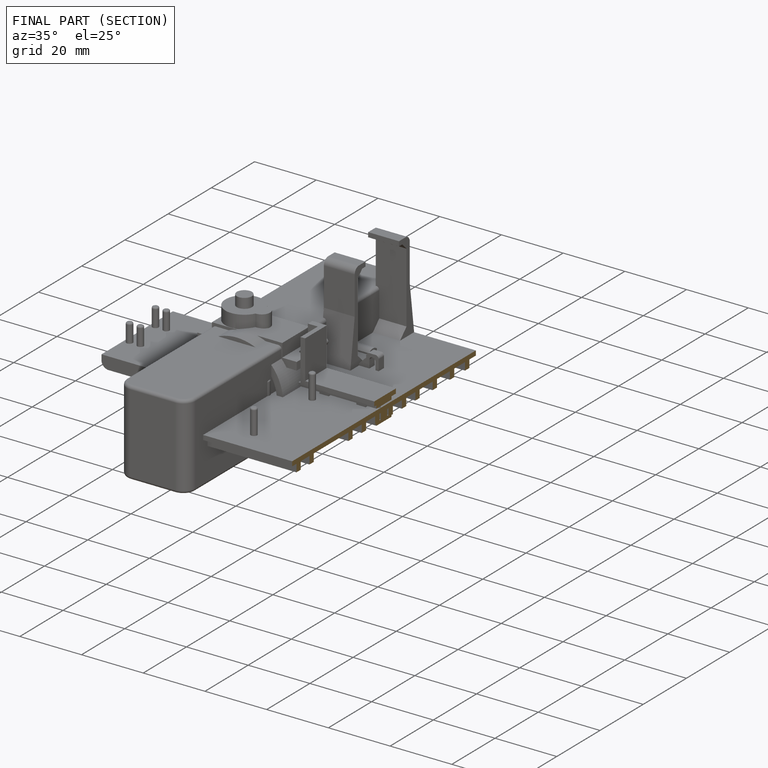
[diagram: finished part — half-section view (interior)]
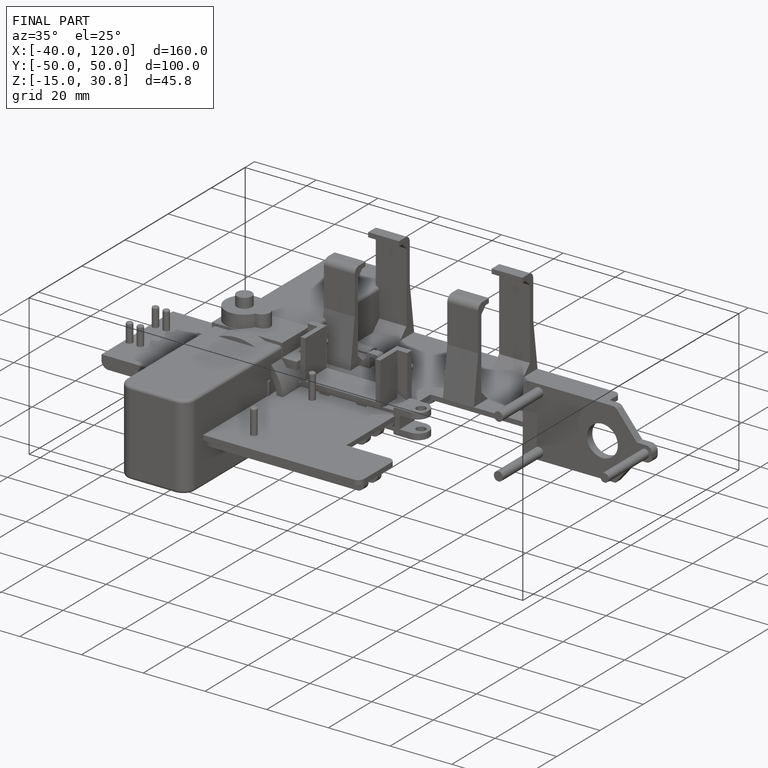
[diagram: finished part — iso view with bounding-box wireframe]
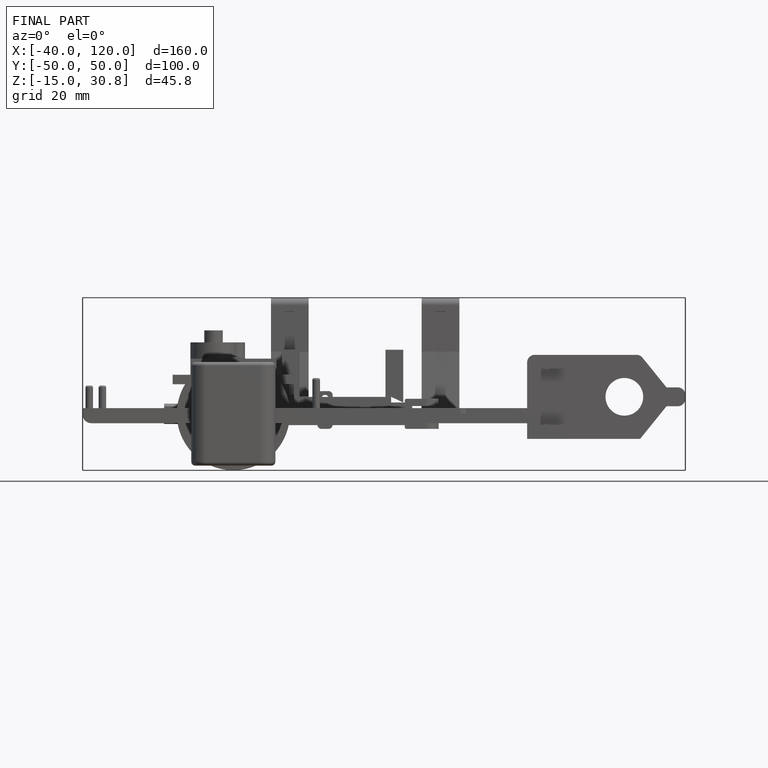
[diagram: finished part — front view with bounding-box wireframe]
